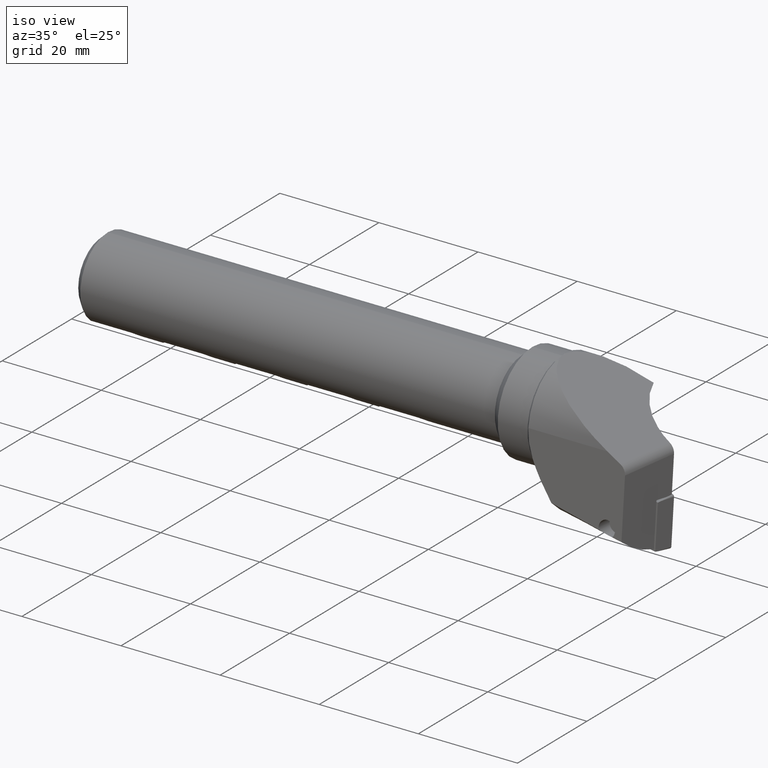
[diagram: clean part render]
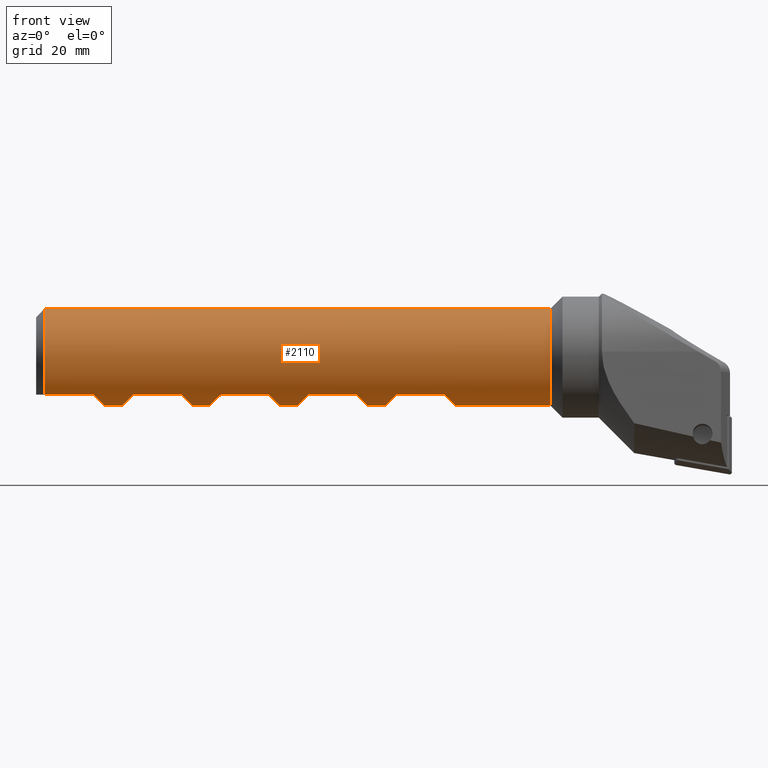
[diagram: tour spotlight — one face highlighted and labeled with its STEP entity id]
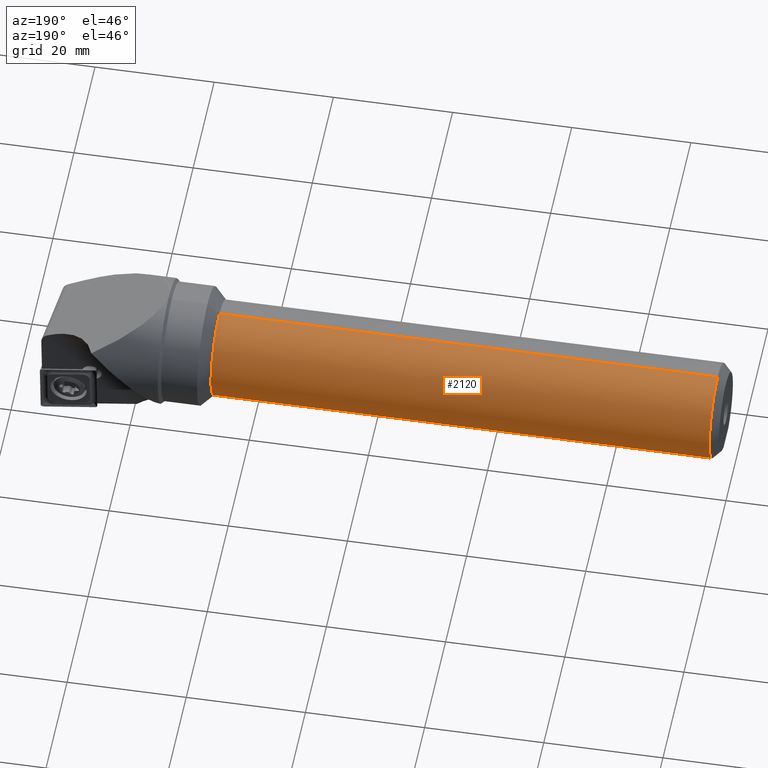
[diagram: tour spotlight — one face highlighted and labeled with its STEP entity id]
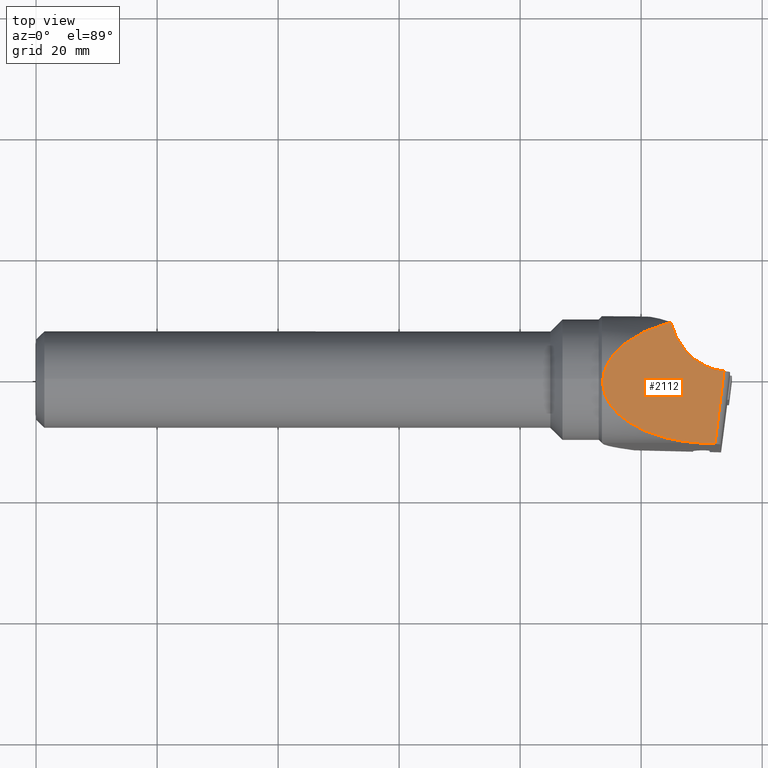
[diagram: tour spotlight — one face highlighted and labeled with its STEP entity id]
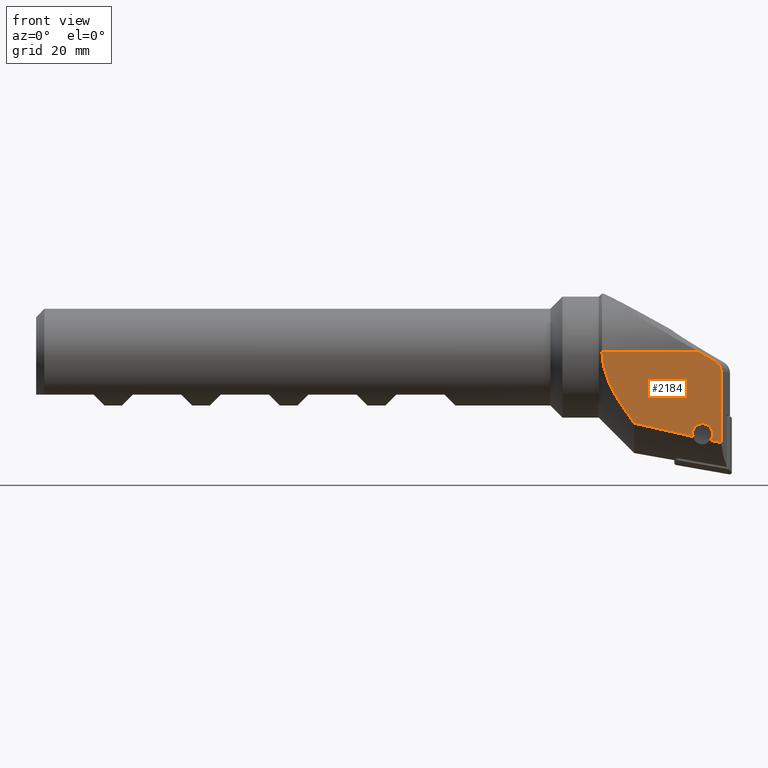
[diagram: tour spotlight — one face highlighted and labeled with its STEP entity id]
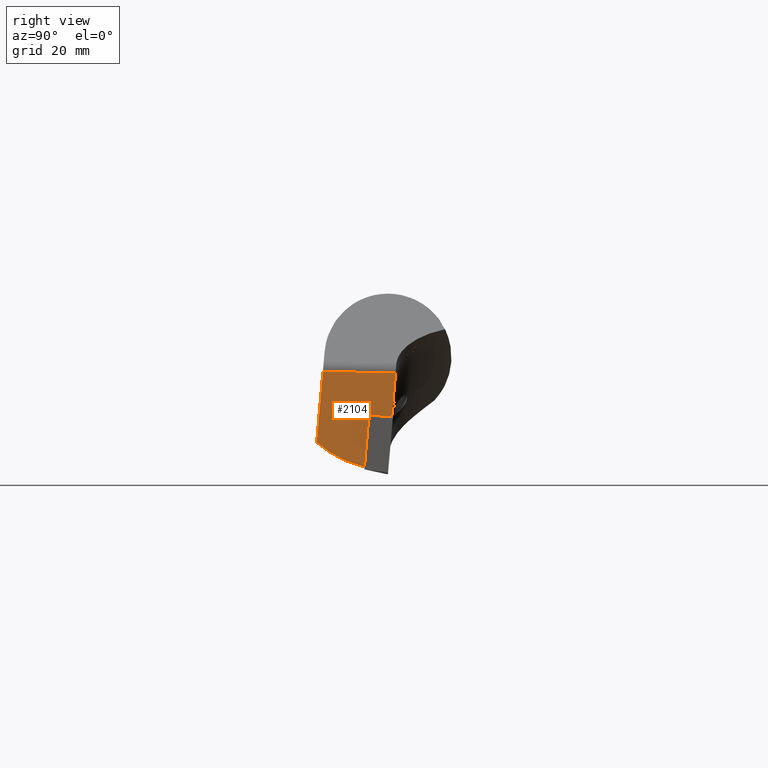
[diagram: tour spotlight — one face highlighted and labeled with its STEP entity id]
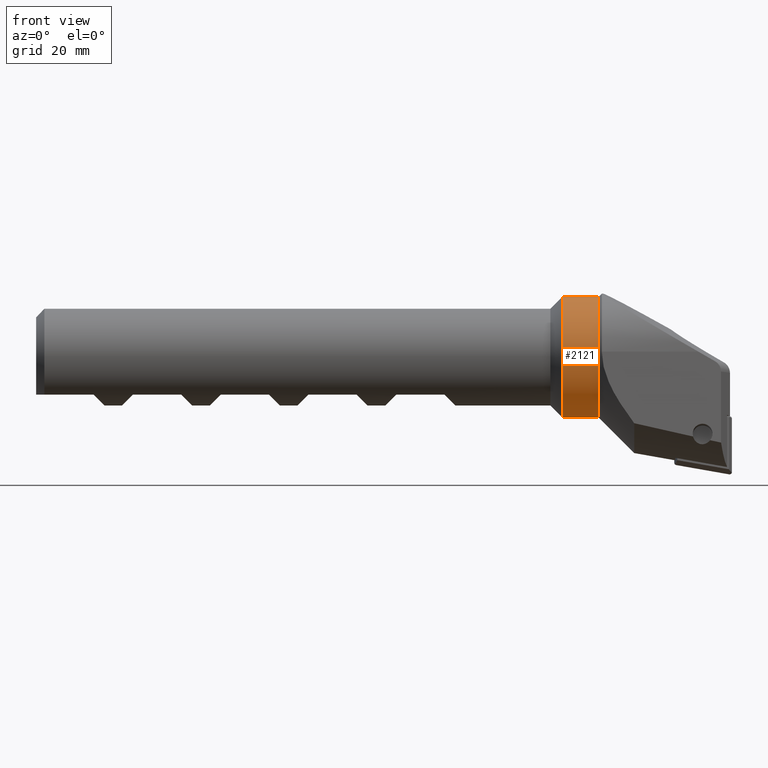
[diagram: tour spotlight — one face highlighted and labeled with its STEP entity id]
A machine part: a face-by-face anatomy tour. The part has 144 B-rep faces; the first image is the clean iso view, then the 6 largest visible faces are spotlighted one at a time (largest first), each with its STEP entity span.

Face 1 — front view, entity #2110. In plain terms, the highlighted cylindrical surface (partial cylindrical patch) has radius 8 mm, axis along (-1, -0, -0).
Definition (entity closure, byte-faithful):
#60 = CARTESIAN_POINT ( 'NONE',  ( 45.00000000000000000, -5.055689863905811900, -6.199999999999997500 ) ) ;
#88 = CARTESIAN_POINT ( 'NONE',  ( 11.30000000000000100, 9.797174393178825700E-016, -8.000000000000000000 ) ) ;
#89 = CARTESIAN_POINT ( 'NONE',  ( 14.19999999999998000, 9.797174393178825700E-016, -8.000000000000000000 ) ) ;
#92 = CARTESIAN_POINT ( 'NONE',  ( 25.80000000000001800, 9.797174393178825700E-016, -8.000000000000000000 ) ) ;
#93 = CARTESIAN_POINT ( 'NONE',  ( 28.69999999999998900, 9.797174393178825700E-016, -8.000000000000000000 ) ) ;
#96 = CARTESIAN_POINT ( 'NONE',  ( 40.30000000000001800, 9.797174393178825700E-016, -8.000000000000000000 ) ) ;
#97 = CARTESIAN_POINT ( 'NONE',  ( 43.19999999999998900, 9.797174393178825700E-016, -8.000000000000000000 ) ) ;
#100 = CARTESIAN_POINT ( 'NONE',  ( 54.80000000000003300, 9.797174393178825700E-016, -8.000000000000000000 ) ) ;
#101 = CARTESIAN_POINT ( 'NONE',  ( 57.69999999999998900, 9.797174393178825700E-016, -8.000000000000000000 ) ) ;
#104 = CARTESIAN_POINT ( 'NONE',  ( 69.30000000000002600, 9.797174393178825700E-016, -8.000000000000000000 ) ) ;
#106 = CARTESIAN_POINT ( 'NONE',  ( 1.374999999999999600, 0.0000000000000000000, 8.000000000000000000 ) ) ;
#109 = CARTESIAN_POINT ( 'NONE',  ( 85.00000000000000000, 0.0000000000000000000, -8.000000000000000000 ) ) ;
#110 = CARTESIAN_POINT ( 'NONE',  ( 85.00000000000000000, 1.102182119232617700E-015, 8.000000000000000000 ) ) ;
#501 = CARTESIAN_POINT ( 'NONE',  ( 38.50000000000000000, -5.055689863905819000, -6.199999999999997500 ) ) ;
#505 = CARTESIAN_POINT ( 'NONE',  ( 24.00000000000000000, -5.055689863905819000, -6.199999999999997500 ) ) ;
#513 = CARTESIAN_POINT ( 'NONE',  ( 9.499999999999998200, -5.055689863905819000, -6.199999999999996600 ) ) ;
#520 = CARTESIAN_POINT ( 'NONE',  ( 59.50000000000000700, -5.055689863905817200, -6.199999999999997500 ) ) ;
#523 = CARTESIAN_POINT ( 'NONE',  ( 67.50000000000000000, -5.055689863905819000, -6.199999999999997500 ) ) ;
#526 = CARTESIAN_POINT ( 'NONE',  ( 53.00000000000000700, -5.055689863905819000, -6.199999999999997500 ) ) ;
#757 = AXIS2_PLACEMENT_3D ( 'NONE', #3999, #4000, #4001 ) ;
#758 = AXIS2_PLACEMENT_3D ( 'NONE', #4004, #4005, #4006 ) ;
#1044 = ORIENTED_EDGE ( 'NONE', *, *, #2199, .F. ) ;
#1045 = ORIENTED_EDGE ( 'NONE', *, *, #5117, .T. ) ;
#1046 = ORIENTED_EDGE ( 'NONE', *, *, #2219, .T. ) ;
#1047 = ORIENTED_EDGE ( 'NONE', *, *, #5119, .F. ) ;
#1048 = ORIENTED_EDGE ( 'NONE', *, *, #5121, .T. ) ;
#1049 = ORIENTED_EDGE ( 'NONE', *, *, #5122, .T. ) ;
#1050 = ORIENTED_EDGE ( 'NONE', *, *, #2215, .F. ) ;
#1051 = ORIENTED_EDGE ( 'NONE', *, *, #5123, .T. ) ;
#1052 = ORIENTED_EDGE ( 'NONE', *, *, #5124, .T. ) ;
#1053 = ORIENTED_EDGE ( 'NONE', *, *, #5126, .T. ) ;
#1054 = ORIENTED_EDGE ( 'NONE', *, *, #2211, .F. ) ;
#1055 = ORIENTED_EDGE ( 'NONE', *, *, #5127, .T. ) ;
#1056 = ORIENTED_EDGE ( 'NONE', *, *, #5129, .T. ) ;
#1057 = ORIENTED_EDGE ( 'NONE', *, *, #5130, .T. ) ;
#1058 = ORIENTED_EDGE ( 'NONE', *, *, #2207, .F. ) ;
#1059 = ORIENTED_EDGE ( 'NONE', *, *, #5131, .T. ) ;
#1060 = ORIENTED_EDGE ( 'NONE', *, *, #5132, .T. ) ;
#1061 = ORIENTED_EDGE ( 'NONE', *, *, #5134, .T. ) ;
#1062 = ORIENTED_EDGE ( 'NONE', *, *, #2203, .F. ) ;
#1063 = ORIENTED_EDGE ( 'NONE', *, *, #5135, .T. ) ;
#1064 = ORIENTED_EDGE ( 'NONE', *, *, #5136, .T. ) ;
#1065 = ORIENTED_EDGE ( 'NONE', *, *, #2238, .T. ) ;
#1354 = VERTEX_POINT ( 'NONE', #110 ) ;
#1355 = VERTEX_POINT ( 'NONE', #109 ) ;
#1358 = VERTEX_POINT ( 'NONE', #106 ) ;
#1360 = VERTEX_POINT ( 'NONE', #104 ) ;
#1363 = VERTEX_POINT ( 'NONE', #101 ) ;
#1364 = VERTEX_POINT ( 'NONE', #100 ) ;
#1367 = VERTEX_POINT ( 'NONE', #97 ) ;
#1368 = VERTEX_POINT ( 'NONE', #96 ) ;
#1371 = VERTEX_POINT ( 'NONE', #93 ) ;
#1372 = VERTEX_POINT ( 'NONE', #92 ) ;
#1375 = VERTEX_POINT ( 'NONE', #89 ) ;
#1376 = VERTEX_POINT ( 'NONE', #88 ) ;
#1404 = VERTEX_POINT ( 'NONE', #60 ) ;
#1406 = VERTEX_POINT ( 'NONE', #2356 ) ;
#1409 = VERTEX_POINT ( 'NONE', #2351 ) ;
#1413 = VERTEX_POINT ( 'NONE', #2303 ) ;
#1417 = VERTEX_POINT ( 'NONE', #520 ) ;
#1418 = VERTEX_POINT ( 'NONE', #513 ) ;
#1420 = VERTEX_POINT ( 'NONE', #505 ) ;
#1421 = VERTEX_POINT ( 'NONE', #501 ) ;
#1423 = VERTEX_POINT ( 'NONE', #526 ) ;
#1425 = VERTEX_POINT ( 'NONE', #523 ) ;
#1586 = FACE_OUTER_BOUND ( 'NONE', #4702, .T. ) ;
#1589 = CYLINDRICAL_SURFACE ( 'NONE', #2021, 8.000000000000000000 ) ;
#1734 = LINE ( 'NONE', #3109, #1764 ) ;
#1739 = LINE ( 'NONE', #3051, #1742 ) ;
#1742 = VECTOR ( 'NONE', #3048, 1000.000000000000000 ) ;
#1745 = LINE ( 'NONE', #3065, #1746 ) ;
#1746 = VECTOR ( 'NONE', #3066, 1000.000000000000000 ) ;
#1749 = LINE ( 'NONE', #3077, #1750 ) ;
#1750 = VECTOR ( 'NONE', #3078, 1000.000000000000000 ) ;
#1753 = LINE ( 'NONE', #3089, #1754 ) ;
#1754 = VECTOR ( 'NONE', #3090, 1000.000000000000000 ) ;
#1757 = LINE ( 'NONE', #3101, #1758 ) ;
#1758 = VECTOR ( 'NONE', #3102, 1000.000000000000000 ) ;
#1764 = VECTOR ( 'NONE', #3103, 1000.000000000000000 ) ;
#2021 = AXIS2_PLACEMENT_3D ( 'NONE', #2737, #2736, #2732 ) ;
#2110 = ADVANCED_FACE ( 'NONE', ( #1586 ), #1589, .T. ) ;
#2199 = EDGE_CURVE ( 'NONE', #1355, #1360, #1739, .T. ) ;
#2203 = EDGE_CURVE ( 'NONE', #1363, #1364, #1745, .T. ) ;
#2207 = EDGE_CURVE ( 'NONE', #1367, #1368, #1749, .T. ) ;
#2211 = EDGE_CURVE ( 'NONE', #1371, #1372, #1753, .T. ) ;
#2215 = EDGE_CURVE ( 'NONE', #1375, #1376, #1757, .T. ) ;
#2219 = EDGE_CURVE ( 'NONE', #1354, #1358, #1734, .T. ) ;
#2238 = EDGE_CURVE ( 'NONE', #1425, #1360, #5081, .T. ) ;
#2303 = CARTESIAN_POINT ( 'NONE',  ( 16.00000000000000000, -5.055689863905819000, -6.199999999999997500 ) ) ;
#2351 = CARTESIAN_POINT ( 'NONE',  ( 1.374999999999999600, -5.055689863905819000, -6.199999999999997500 ) ) ;
#2356 = CARTESIAN_POINT ( 'NONE',  ( 30.50000000000000000, -5.055689863905817200, -6.199999999999997500 ) ) ;
#2732 = DIRECTION ( 'NONE',  ( 0.0000000000000000000, 0.0000000000000000000, 1.000000000000000000 ) ) ;
#2736 = DIRECTION ( 'NONE',  ( -1.000000000000000000, -0.0000000000000000000, -0.0000000000000000000 ) ) ;
#2737 = CARTESIAN_POINT ( 'NONE',  ( -3.175455607189903200, 0.0000000000000000000, 0.0000000000000000000 ) ) ;
#3048 = DIRECTION ( 'NONE',  ( -1.000000000000000000, -0.0000000000000000000, -0.0000000000000000000 ) ) ;
#3051 = CARTESIAN_POINT ( 'NONE',  ( -3.175455607189903200, 9.797174393178825700E-016, -8.000000000000000000 ) ) ;
#3065 = CARTESIAN_POINT ( 'NONE',  ( -3.175455607189903200, 9.797174393178825700E-016, -8.000000000000000000 ) ) ;
#3066 = DIRECTION ( 'NONE',  ( -1.000000000000000000, -0.0000000000000000000, -0.0000000000000000000 ) ) ;
#3077 = CARTESIAN_POINT ( 'NONE',  ( -3.175455607189903200, 9.797174393178825700E-016, -8.000000000000000000 ) ) ;
#3078 = DIRECTION ( 'NONE',  ( -1.000000000000000000, -0.0000000000000000000, -0.0000000000000000000 ) ) ;
#3089 = CARTESIAN_POINT ( 'NONE',  ( -3.175455607189903200, 9.797174393178825700E-016, -8.000000000000000000 ) ) ;
#3090 = DIRECTION ( 'NONE',  ( -1.000000000000000000, -0.0000000000000000000, -0.0000000000000000000 ) ) ;
#3101 = CARTESIAN_POINT ( 'NONE',  ( -3.175455607189903200, 9.797174393178825700E-016, -8.000000000000000000 ) ) ;
#3102 = DIRECTION ( 'NONE',  ( -1.000000000000000000, -0.0000000000000000000, -0.0000000000000000000 ) ) ;
#3103 = DIRECTION ( 'NONE',  ( -1.000000000000000000, -0.0000000000000000000, -0.0000000000000000000 ) ) ;
#3109 = CARTESIAN_POINT ( 'NONE',  ( -3.175455607189903200, 0.0000000000000000000, 8.000000000000000000 ) ) ;
#3168 = CARTESIAN_POINT ( 'NONE',  ( 67.50000000000000000, -5.055689863905819000, -6.199999999999997500 ) ) ;
#3173 = CARTESIAN_POINT ( 'NONE',  ( 68.67589809307645500, -3.613637765511935800, -7.375898093076461500 ) ) ;
#3178 = CARTESIAN_POINT ( 'NONE',  ( 69.30000000000001100, -1.860712385024369400, -7.999999999999998200 ) ) ;
#3179 = CARTESIAN_POINT ( 'NONE',  ( 69.30000000000002600, 9.797174393178825700E-016, -8.000000000000000000 ) ) ;
#3997 = CARTESIAN_POINT ( 'NONE',  ( -3.175455607189902700, -5.055689863905819000, -6.199999999999997500 ) ) ;
#3998 = DIRECTION ( 'NONE',  ( 1.000000000000000000, 0.0000000000000000000, 0.0000000000000000000 ) ) ;
#3999 = CARTESIAN_POINT ( 'NONE',  ( 85.00000000000000000, 0.0000000000000000000, 0.0000000000000000000 ) ) ;
#4000 = DIRECTION ( 'NONE',  ( -1.000000000000000000, -0.0000000000000000000, -0.0000000000000000000 ) ) ;
#4001 = DIRECTION ( 'NONE',  ( 0.0000000000000000000, 0.0000000000000000000, 1.000000000000000000 ) ) ;
#4002 = CARTESIAN_POINT ( 'NONE',  ( 9.499999999999998200, -5.055689863905819000, -6.199999999999996600 ) ) ;
#4003 = CARTESIAN_POINT ( 'NONE',  ( 10.67589809307646000, -3.613637765511935800, -7.375898093076462400 ) ) ;
#4004 = CARTESIAN_POINT ( 'NONE',  ( 1.374999999999999600, 0.0000000000000000000, 0.0000000000000000000 ) ) ;
#4005 = DIRECTION ( 'NONE',  ( -1.000000000000000000, -0.0000000000000000000, -0.0000000000000000000 ) ) ;
#4006 = DIRECTION ( 'NONE',  ( 0.0000000000000000000, 0.0000000000000000000, 1.000000000000000000 ) ) ;
#4007 = CARTESIAN_POINT ( 'NONE',  ( 14.19999999999997800, -1.860712385024368300, -7.999999999999998200 ) ) ;
#4008 = CARTESIAN_POINT ( 'NONE',  ( 14.19999999999998000, 9.797174393178825700E-016, -8.000000000000000000 ) ) ;
#4009 = CARTESIAN_POINT ( 'NONE',  ( 11.29999999999999900, -1.860712385024369400, -7.999999999999998200 ) ) ;
#4010 = CARTESIAN_POINT ( 'NONE',  ( 11.30000000000000100, 9.797174393178825700E-016, -8.000000000000000000 ) ) ;
#4011 = CARTESIAN_POINT ( 'NONE',  ( 25.17589809307647300, -3.613637765511933200, -7.375898093076462400 ) ) ;
#4012 = CARTESIAN_POINT ( 'NONE',  ( 24.00000000000000000, -5.055689863905819000, -6.199999999999997500 ) ) ;
#4013 = CARTESIAN_POINT ( 'NONE',  ( 14.82410190692352200, -3.613637765511933600, -7.375898093076462400 ) ) ;
#4014 = CARTESIAN_POINT ( 'NONE',  ( 16.00000000000000000, -5.055689863905819000, -6.199999999999997500 ) ) ;
#4015 = CARTESIAN_POINT ( 'NONE',  ( -3.175455607189903200, -5.055689863905819000, -6.199999999999997500 ) ) ;
#4016 = DIRECTION ( 'NONE',  ( 1.000000000000000000, 0.0000000000000000000, 0.0000000000000000000 ) ) ;
#4017 = CARTESIAN_POINT ( 'NONE',  ( 28.69999999999997800, -1.860712385024367400, -7.999999999999998200 ) ) ;
#4018 = CARTESIAN_POINT ( 'NONE',  ( 28.69999999999998900, 9.797174393178825700E-016, -8.000000000000000000 ) ) ;
#4019 = CARTESIAN_POINT ( 'NONE',  ( 25.80000000000001500, -1.860712385024368500, -7.999999999999998200 ) ) ;
#4020 = CARTESIAN_POINT ( 'NONE',  ( 25.80000000000001800, 9.797174393178825700E-016, -8.000000000000000000 ) ) ;
#4021 = CARTESIAN_POINT ( 'NONE',  ( 39.67589809307646900, -3.613637765511933200, -7.375898093076462400 ) ) ;
#4022 = CARTESIAN_POINT ( 'NONE',  ( 38.50000000000000000, -5.055689863905819000, -6.199999999999997500 ) ) ;
#4023 = CARTESIAN_POINT ( 'NONE',  ( 29.32410190692352000, -3.613637765511932300, -7.375898093076464200 ) ) ;
#4024 = CARTESIAN_POINT ( 'NONE',  ( 30.50000000000000000, -5.055689863905817200, -6.199999999999997500 ) ) ;
#4025 = CARTESIAN_POINT ( 'NONE',  ( -3.175455607189903200, -5.055689863905819000, -6.199999999999997500 ) ) ;
#4026 = DIRECTION ( 'NONE',  ( 1.000000000000000000, 0.0000000000000000000, 0.0000000000000000000 ) ) ;
#4027 = CARTESIAN_POINT ( 'NONE',  ( 43.19999999999998900, -1.860712385024365000, -7.999999999999998200 ) ) ;
#4028 = CARTESIAN_POINT ( 'NONE',  ( 43.19999999999998900, 9.797174393178825700E-016, -8.000000000000000000 ) ) ;
#4029 = CARTESIAN_POINT ( 'NONE',  ( 40.30000000000001800, -1.860712385024368500, -7.999999999999998200 ) ) ;
#4030 = CARTESIAN_POINT ( 'NONE',  ( 40.30000000000001800, 9.797174393178825700E-016, -8.000000000000000000 ) ) ;
#4031 = CARTESIAN_POINT ( 'NONE',  ( 54.17589809307646900, -3.613637765511933200, -7.375898093076462400 ) ) ;
#4032 = CARTESIAN_POINT ( 'NONE',  ( 53.00000000000000700, -5.055689863905819000, -6.199999999999997500 ) ) ;
#4033 = CARTESIAN_POINT ( 'NONE',  ( 43.82410190692352400, -3.613637765511927800, -7.375898093076464200 ) ) ;
#4034 = CARTESIAN_POINT ( 'NONE',  ( 45.00000000000000000, -5.055689863905811900, -6.199999999999997500 ) ) ;
#4035 = CARTESIAN_POINT ( 'NONE',  ( -3.175455607189903200, -5.055689863905819000, -6.199999999999997500 ) ) ;
#4036 = DIRECTION ( 'NONE',  ( 1.000000000000000000, 0.0000000000000000000, 0.0000000000000000000 ) ) ;
#4037 = CARTESIAN_POINT ( 'NONE',  ( 57.69999999999998200, -1.860712385024367400, -7.999999999999998200 ) ) ;
#4038 = CARTESIAN_POINT ( 'NONE',  ( 57.69999999999998900, 9.797174393178825700E-016, -8.000000000000000000 ) ) ;
#4039 = CARTESIAN_POINT ( 'NONE',  ( 54.80000000000001800, -1.860712385024368500, -7.999999999999998200 ) ) ;
#4040 = CARTESIAN_POINT ( 'NONE',  ( 54.80000000000003300, 9.797174393178825700E-016, -8.000000000000000000 ) ) ;
#4042 = CARTESIAN_POINT ( 'NONE',  ( 58.32410190692352400, -3.613637765511932300, -7.375898093076464200 ) ) ;
#4043 = CARTESIAN_POINT ( 'NONE',  ( 59.50000000000000700, -5.055689863905817200, -6.199999999999997500 ) ) ;
#4044 = CARTESIAN_POINT ( 'NONE',  ( -3.175455607189903200, -5.055689863905819000, -6.199999999999997500 ) ) ;
#4045 = DIRECTION ( 'NONE',  ( 1.000000000000000000, 0.0000000000000000000, 0.0000000000000000000 ) ) ;
#4382 = CIRCLE ( 'NONE', #757, 8.000000000000000000 ) ;
#4384 = CIRCLE ( 'NONE', #758, 8.000000000000000000 ) ;
#4385 = LINE ( 'NONE', #3997, #4386 ) ;
#4386 = VECTOR ( 'NONE', #3998, 1000.000000000000000 ) ;
#4387 = LINE ( 'NONE', #4015, #4388 ) ;
#4388 = VECTOR ( 'NONE', #4016, 1000.000000000000000 ) ;
#4389 = LINE ( 'NONE', #4025, #4390 ) ;
#4390 = VECTOR ( 'NONE', #4026, 1000.000000000000000 ) ;
#4391 = LINE ( 'NONE', #4035, #4392 ) ;
#4392 = VECTOR ( 'NONE', #4036, 1000.000000000000000 ) ;
#4393 = LINE ( 'NONE', #4044, #4395 ) ;
#4395 = VECTOR ( 'NONE', #4045, 1000.000000000000000 ) ;
#4702 = EDGE_LOOP ( 'NONE', ( #1044, #1045, #1046, #1047, #1048, #1049, #1050, #1051, #1052, #1053, #1054, #1055, #1056, #1057, #1058, #1059, #1060, #1061, #1062, #1063, #1064, #1065 ) ) ;
#5081 =( BOUNDED_CURVE ( )  B_SPLINE_CURVE ( 3, ( #3168, #3173, #3178, #3179 ),
 .UNSPECIFIED., .F., .F. ) 
 B_SPLINE_CURVE_WITH_KNOTS ( ( 4, 4 ),
 ( 2.457511421794463100, 3.141592653589793100 ),
 .UNSPECIFIED. ) 
 CURVE ( )  GEOMETRIC_REPRESENTATION_ITEM ( )  RATIONAL_B_SPLINE_CURVE ( ( 1.000000000000000000, 0.9613814560472256900, 0.9613814560472256900, 1.000000000000000000 ) ) 
 REPRESENTATION_ITEM ( '' )  );
#5117 = EDGE_CURVE ( 'NONE', #1355, #1354, #4382, .T. ) ;
#5119 = EDGE_CURVE ( 'NONE', #1409, #1358, #4384, .T. ) ;
#5121 = EDGE_CURVE ( 'NONE', #1409, #1418, #4385, .T. ) ;
#5122 = EDGE_CURVE ( 'NONE', #1418, #1376, #5161, .T. ) ;
#5123 = EDGE_CURVE ( 'NONE', #1375, #1413, #5164, .T. ) ;
#5124 = EDGE_CURVE ( 'NONE', #1413, #1420, #4387, .T. ) ;
#5126 = EDGE_CURVE ( 'NONE', #1420, #1372, #5165, .T. ) ;
#5127 = EDGE_CURVE ( 'NONE', #1371, #1406, #5166, .T. ) ;
#5129 = EDGE_CURVE ( 'NONE', #1406, #1421, #4389, .T. ) ;
#5130 = EDGE_CURVE ( 'NONE', #1421, #1368, #5168, .T. ) ;
#5131 = EDGE_CURVE ( 'NONE', #1367, #1404, #5172, .T. ) ;
#5132 = EDGE_CURVE ( 'NONE', #1404, #1423, #4391, .T. ) ;
#5134 = EDGE_CURVE ( 'NONE', #1423, #1364, #5173, .T. ) ;
#5135 = EDGE_CURVE ( 'NONE', #1363, #1417, #5174, .T. ) ;
#5136 = EDGE_CURVE ( 'NONE', #1417, #1425, #4393, .T. ) ;
#5161 =( BOUNDED_CURVE ( )  B_SPLINE_CURVE ( 3, ( #4002, #4003, #4009, #4010 ),
 .UNSPECIFIED., .F., .F. ) 
 B_SPLINE_CURVE_WITH_KNOTS ( ( 4, 4 ),
 ( 2.457511421794463100, 3.141592653589793100 ),
 .UNSPECIFIED. ) 
 CURVE ( )  GEOMETRIC_REPRESENTATION_ITEM ( )  RATIONAL_B_SPLINE_CURVE ( ( 1.000000000000000000, 0.9613814560472256900, 0.9613814560472256900, 1.000000000000000000 ) ) 
 REPRESENTATION_ITEM ( '' )  );
#5164 =( BOUNDED_CURVE ( )  B_SPLINE_CURVE ( 3, ( #4008, #4007, #4013, #4014 ),
 .UNSPECIFIED., .F., .F. ) 
 B_SPLINE_CURVE_WITH_KNOTS ( ( 4, 4 ),
 ( 0.0000000000000000000, 0.6840812317953298700 ),
 .UNSPECIFIED. ) 
 CURVE ( )  GEOMETRIC_REPRESENTATION_ITEM ( )  RATIONAL_B_SPLINE_CURVE ( ( 1.000000000000000000, 0.9613814560472256900, 0.9613814560472256900, 1.000000000000000000 ) ) 
 REPRESENTATION_ITEM ( '' )  );
#5165 =( BOUNDED_CURVE ( )  B_SPLINE_CURVE ( 3, ( #4012, #4011, #4019, #4020 ),
 .UNSPECIFIED., .F., .F. ) 
 B_SPLINE_CURVE_WITH_KNOTS ( ( 4, 4 ),
 ( 2.457511421794463600, 3.141592653589793100 ),
 .UNSPECIFIED. ) 
 CURVE ( )  GEOMETRIC_REPRESENTATION_ITEM ( )  RATIONAL_B_SPLINE_CURVE ( ( 1.000000000000000000, 0.9613814560472256900, 0.9613814560472256900, 1.000000000000000000 ) ) 
 REPRESENTATION_ITEM ( '' )  );
#5166 =( BOUNDED_CURVE ( )  B_SPLINE_CURVE ( 3, ( #4018, #4017, #4023, #4024 ),
 .UNSPECIFIED., .F., .F. ) 
 B_SPLINE_CURVE_WITH_KNOTS ( ( 4, 4 ),
 ( 0.0000000000000000000, 0.6840812317953295400 ),
 .UNSPECIFIED. ) 
 CURVE ( )  GEOMETRIC_REPRESENTATION_ITEM ( )  RATIONAL_B_SPLINE_CURVE ( ( 1.000000000000000000, 0.9613814560472256900, 0.9613814560472256900, 1.000000000000000000 ) ) 
 REPRESENTATION_ITEM ( '' )  );
#5168 =( BOUNDED_CURVE ( )  B_SPLINE_CURVE ( 3, ( #4022, #4021, #4029, #4030 ),
 .UNSPECIFIED., .F., .F. ) 
 B_SPLINE_CURVE_WITH_KNOTS ( ( 4, 4 ),
 ( 2.457511421794463600, 3.141592653589793100 ),
 .UNSPECIFIED. ) 
 CURVE ( )  GEOMETRIC_REPRESENTATION_ITEM ( )  RATIONAL_B_SPLINE_CURVE ( ( 1.000000000000000000, 0.9613814560472256900, 0.9613814560472256900, 1.000000000000000000 ) ) 
 REPRESENTATION_ITEM ( '' )  );
#5172 =( BOUNDED_CURVE ( )  B_SPLINE_CURVE ( 3, ( #4028, #4027, #4033, #4034 ),
 .UNSPECIFIED., .F., .F. ) 
 B_SPLINE_CURVE_WITH_KNOTS ( ( 4, 4 ),
 ( 0.0000000000000000000, 0.6840812317953286500 ),
 .UNSPECIFIED. ) 
 CURVE ( )  GEOMETRIC_REPRESENTATION_ITEM ( )  RATIONAL_B_SPLINE_CURVE ( ( 1.000000000000000000, 0.9613814560472256900, 0.9613814560472256900, 1.000000000000000000 ) ) 
 REPRESENTATION_ITEM ( '' )  );
#5173 =( BOUNDED_CURVE ( )  B_SPLINE_CURVE ( 3, ( #4032, #4031, #4039, #4040 ),
 .UNSPECIFIED., .F., .F. ) 
 B_SPLINE_CURVE_WITH_KNOTS ( ( 4, 4 ),
 ( 2.457511421794463600, 3.141592653589793100 ),
 .UNSPECIFIED. ) 
 CURVE ( )  GEOMETRIC_REPRESENTATION_ITEM ( )  RATIONAL_B_SPLINE_CURVE ( ( 1.000000000000000000, 0.9613814560472256900, 0.9613814560472256900, 1.000000000000000000 ) ) 
 REPRESENTATION_ITEM ( '' )  );
#5174 =( BOUNDED_CURVE ( )  B_SPLINE_CURVE ( 3, ( #4038, #4037, #4042, #4043 ),
 .UNSPECIFIED., .F., .F. ) 
 B_SPLINE_CURVE_WITH_KNOTS ( ( 4, 4 ),
 ( 0.0000000000000000000, 0.6840812317953295400 ),
 .UNSPECIFIED. ) 
 CURVE ( )  GEOMETRIC_REPRESENTATION_ITEM ( )  RATIONAL_B_SPLINE_CURVE ( ( 1.000000000000000000, 0.9613814560472256900, 0.9613814560472256900, 1.000000000000000000 ) ) 
 REPRESENTATION_ITEM ( '' )  );

Face 2 — auxiliary view, entity #2120. In plain terms, the highlighted cylindrical surface (partial cylindrical patch) has radius 8 mm, axis along (-1, -0, -0).
Definition (entity closure, byte-faithful):
#86 = CARTESIAN_POINT ( 'NONE',  ( 1.375000000000003600, 5.055689863905846500, -6.199999999999997500 ) ) ;
#87 = CARTESIAN_POINT ( 'NONE',  ( 9.499999999999998200, 5.055689863905820800, -6.199999999999996600 ) ) ;
#88 = CARTESIAN_POINT ( 'NONE',  ( 11.30000000000000100, 9.797174393178825700E-016, -8.000000000000000000 ) ) ;
#89 = CARTESIAN_POINT ( 'NONE',  ( 14.19999999999998000, 9.797174393178825700E-016, -8.000000000000000000 ) ) ;
#90 = CARTESIAN_POINT ( 'NONE',  ( 16.00000000000000000, 5.055689863905820800, -6.199999999999997500 ) ) ;
#91 = CARTESIAN_POINT ( 'NONE',  ( 24.00000000000000000, 5.055689863905820800, -6.199999999999997500 ) ) ;
#92 = CARTESIAN_POINT ( 'NONE',  ( 25.80000000000001800, 9.797174393178825700E-016, -8.000000000000000000 ) ) ;
#93 = CARTESIAN_POINT ( 'NONE',  ( 28.69999999999998900, 9.797174393178825700E-016, -8.000000000000000000 ) ) ;
#94 = CARTESIAN_POINT ( 'NONE',  ( 30.50000000000000000, 5.055689863905817200, -6.199999999999997500 ) ) ;
#95 = CARTESIAN_POINT ( 'NONE',  ( 38.50000000000000000, 5.055689863905820800, -6.199999999999997500 ) ) ;
#96 = CARTESIAN_POINT ( 'NONE',  ( 40.30000000000001800, 9.797174393178825700E-016, -8.000000000000000000 ) ) ;
#97 = CARTESIAN_POINT ( 'NONE',  ( 43.19999999999998900, 9.797174393178825700E-016, -8.000000000000000000 ) ) ;
#98 = CARTESIAN_POINT ( 'NONE',  ( 45.00000000000000000, 5.055689863905813700, -6.199999999999997500 ) ) ;
#99 = CARTESIAN_POINT ( 'NONE',  ( 53.00000000000000700, 5.055689863905820800, -6.199999999999997500 ) ) ;
#100 = CARTESIAN_POINT ( 'NONE',  ( 54.80000000000003300, 9.797174393178825700E-016, -8.000000000000000000 ) ) ;
#101 = CARTESIAN_POINT ( 'NONE',  ( 57.69999999999998900, 9.797174393178825700E-016, -8.000000000000000000 ) ) ;
#102 = CARTESIAN_POINT ( 'NONE',  ( 59.50000000000000700, 5.055689863905817200, -6.199999999999997500 ) ) ;
#103 = CARTESIAN_POINT ( 'NONE',  ( 67.50000000000000000, 5.055689863905820800, -6.199999999999997500 ) ) ;
#104 = CARTESIAN_POINT ( 'NONE',  ( 69.30000000000002600, 9.797174393178825700E-016, -8.000000000000000000 ) ) ;
#106 = CARTESIAN_POINT ( 'NONE',  ( 1.374999999999999600, 0.0000000000000000000, 8.000000000000000000 ) ) ;
#109 = CARTESIAN_POINT ( 'NONE',  ( 85.00000000000000000, 0.0000000000000000000, -8.000000000000000000 ) ) ;
#110 = CARTESIAN_POINT ( 'NONE',  ( 85.00000000000000000, 1.102182119232617700E-015, 8.000000000000000000 ) ) ;
#674 = AXIS2_PLACEMENT_3D ( 'NONE', #3052, #3053, #3054 ) ;
#675 = AXIS2_PLACEMENT_3D ( 'NONE', #3110, #3111, #3112 ) ;
#916 = ORIENTED_EDGE ( 'NONE', *, *, #2198, .T. ) ;
#917 = ORIENTED_EDGE ( 'NONE', *, *, #2199, .T. ) ;
#918 = ORIENTED_EDGE ( 'NONE', *, *, #2200, .T. ) ;
#919 = ORIENTED_EDGE ( 'NONE', *, *, #2201, .T. ) ;
#920 = ORIENTED_EDGE ( 'NONE', *, *, #2202, .T. ) ;
#921 = ORIENTED_EDGE ( 'NONE', *, *, #2203, .T. ) ;
#922 = ORIENTED_EDGE ( 'NONE', *, *, #2204, .T. ) ;
#923 = ORIENTED_EDGE ( 'NONE', *, *, #2205, .T. ) ;
#924 = ORIENTED_EDGE ( 'NONE', *, *, #2206, .T. ) ;
#925 = ORIENTED_EDGE ( 'NONE', *, *, #2207, .T. ) ;
#926 = ORIENTED_EDGE ( 'NONE', *, *, #2208, .T. ) ;
#927 = ORIENTED_EDGE ( 'NONE', *, *, #2209, .T. ) ;
#928 = ORIENTED_EDGE ( 'NONE', *, *, #2210, .T. ) ;
#929 = ORIENTED_EDGE ( 'NONE', *, *, #2211, .T. ) ;
#930 = ORIENTED_EDGE ( 'NONE', *, *, #2212, .T. ) ;
#931 = ORIENTED_EDGE ( 'NONE', *, *, #2213, .T. ) ;
#932 = ORIENTED_EDGE ( 'NONE', *, *, #2214, .T. ) ;
#933 = ORIENTED_EDGE ( 'NONE', *, *, #2215, .T. ) ;
#934 = ORIENTED_EDGE ( 'NONE', *, *, #2216, .T. ) ;
#935 = ORIENTED_EDGE ( 'NONE', *, *, #2217, .T. ) ;
#936 = ORIENTED_EDGE ( 'NONE', *, *, #2218, .F. ) ;
#937 = ORIENTED_EDGE ( 'NONE', *, *, #2219, .F. ) ;
#1354 = VERTEX_POINT ( 'NONE', #110 ) ;
#1355 = VERTEX_POINT ( 'NONE', #109 ) ;
#1358 = VERTEX_POINT ( 'NONE', #106 ) ;
#1360 = VERTEX_POINT ( 'NONE', #104 ) ;
#1361 = VERTEX_POINT ( 'NONE', #103 ) ;
#1362 = VERTEX_POINT ( 'NONE', #102 ) ;
#1363 = VERTEX_POINT ( 'NONE', #101 ) ;
#1364 = VERTEX_POINT ( 'NONE', #100 ) ;
#1365 = VERTEX_POINT ( 'NONE', #99 ) ;
#1366 = VERTEX_POINT ( 'NONE', #98 ) ;
#1367 = VERTEX_POINT ( 'NONE', #97 ) ;
#1368 = VERTEX_POINT ( 'NONE', #96 ) ;
#1369 = VERTEX_POINT ( 'NONE', #95 ) ;
#1370 = VERTEX_POINT ( 'NONE', #94 ) ;
#1371 = VERTEX_POINT ( 'NONE', #93 ) ;
#1372 = VERTEX_POINT ( 'NONE', #92 ) ;
#1373 = VERTEX_POINT ( 'NONE', #91 ) ;
#1374 = VERTEX_POINT ( 'NONE', #90 ) ;
#1375 = VERTEX_POINT ( 'NONE', #89 ) ;
#1376 = VERTEX_POINT ( 'NONE', #88 ) ;
#1377 = VERTEX_POINT ( 'NONE', #87 ) ;
#1378 = VERTEX_POINT ( 'NONE', #86 ) ;
#1592 = CYLINDRICAL_SURFACE ( 'NONE', #2032, 8.000000000000000000 ) ;
#1595 = FACE_OUTER_BOUND ( 'NONE', #4735, .T. ) ;
#1734 = LINE ( 'NONE', #3109, #1764 ) ;
#1736 = CIRCLE ( 'NONE', #674, 8.000000000000000000 ) ;
#1739 = LINE ( 'NONE', #3051, #1742 ) ;
#1742 = VECTOR ( 'NONE', #3048, 1000.000000000000000 ) ;
#1743 = LINE ( 'NONE', #3059, #1744 ) ;
#1744 = VECTOR ( 'NONE', #3060, 1000.000000000000000 ) ;
#1745 = LINE ( 'NONE', #3065, #1746 ) ;
#1746 = VECTOR ( 'NONE', #3066, 1000.000000000000000 ) ;
#1747 = LINE ( 'NONE', #3071, #1748 ) ;
#1748 = VECTOR ( 'NONE', #3072, 1000.000000000000000 ) ;
#1749 = LINE ( 'NONE', #3077, #1750 ) ;
#1750 = VECTOR ( 'NONE', #3078, 1000.000000000000000 ) ;
#1751 = LINE ( 'NONE', #3083, #1752 ) ;
#1752 = VECTOR ( 'NONE', #3084, 1000.000000000000000 ) ;
#1753 = LINE ( 'NONE', #3089, #1754 ) ;
#1754 = VECTOR ( 'NONE', #3090, 1000.000000000000000 ) ;
#1755 = LINE ( 'NONE', #3095, #1756 ) ;
#1756 = VECTOR ( 'NONE', #3096, 1000.000000000000000 ) ;
#1757 = LINE ( 'NONE', #3101, #1758 ) ;
#1758 = VECTOR ( 'NONE', #3102, 1000.000000000000000 ) ;
#1759 = LINE ( 'NONE', #3106, #1761 ) ;
#1760 = CIRCLE ( 'NONE', #675, 8.000000000000000000 ) ;
#1761 = VECTOR ( 'NONE', #3107, 1000.000000000000000 ) ;
#1764 = VECTOR ( 'NONE', #3103, 1000.000000000000000 ) ;
#2032 = AXIS2_PLACEMENT_3D ( 'NONE', #2772, #2770, #2768 ) ;
#2120 = ADVANCED_FACE ( 'NONE', ( #1595 ), #1592, .T. ) ;
#2198 = EDGE_CURVE ( 'NONE', #1354, #1355, #1736, .T. ) ;
#2199 = EDGE_CURVE ( 'NONE', #1355, #1360, #1739, .T. ) ;
#2200 = EDGE_CURVE ( 'NONE', #1360, #1361, #5021, .T. ) ;
#2201 = EDGE_CURVE ( 'NONE', #1361, #1362, #1743, .T. ) ;
#2202 = EDGE_CURVE ( 'NONE', #1362, #1363, #5022, .T. ) ;
#2203 = EDGE_CURVE ( 'NONE', #1363, #1364, #1745, .T. ) ;
#2204 = EDGE_CURVE ( 'NONE', #1364, #1365, #5019, .T. ) ;
#2205 = EDGE_CURVE ( 'NONE', #1365, #1366, #1747, .T. ) ;
#2206 = EDGE_CURVE ( 'NONE', #1366, #1367, #5018, .T. ) ;
#2207 = EDGE_CURVE ( 'NONE', #1367, #1368, #1749, .T. ) ;
#2208 = EDGE_CURVE ( 'NONE', #1368, #1369, #5178, .T. ) ;
#2209 = EDGE_CURVE ( 'NONE', #1369, #1370, #1751, .T. ) ;
#2210 = EDGE_CURVE ( 'NONE', #1370, #1371, #5111, .T. ) ;
#2211 = EDGE_CURVE ( 'NONE', #1371, #1372, #1753, .T. ) ;
#2212 = EDGE_CURVE ( 'NONE', #1372, #1373, #5092, .T. ) ;
#2213 = EDGE_CURVE ( 'NONE', #1373, #1374, #1755, .T. ) ;
#2214 = EDGE_CURVE ( 'NONE', #1374, #1375, #5020, .T. ) ;
#2215 = EDGE_CURVE ( 'NONE', #1375, #1376, #1757, .T. ) ;
#2216 = EDGE_CURVE ( 'NONE', #1376, #1377, #5034, .T. ) ;
#2217 = EDGE_CURVE ( 'NONE', #1377, #1378, #1759, .T. ) ;
#2218 = EDGE_CURVE ( 'NONE', #1358, #1378, #1760, .T. ) ;
#2219 = EDGE_CURVE ( 'NONE', #1354, #1358, #1734, .T. ) ;
#2768 = DIRECTION ( 'NONE',  ( 0.0000000000000000000, 0.0000000000000000000, 1.000000000000000000 ) ) ;
#2770 = DIRECTION ( 'NONE',  ( -1.000000000000000000, -0.0000000000000000000, -0.0000000000000000000 ) ) ;
#2772 = CARTESIAN_POINT ( 'NONE',  ( -3.175455607189903200, 0.0000000000000000000, 0.0000000000000000000 ) ) ;
#3048 = DIRECTION ( 'NONE',  ( -1.000000000000000000, -0.0000000000000000000, -0.0000000000000000000 ) ) ;
#3049 = CARTESIAN_POINT ( 'NONE',  ( 69.30000000000002600, 9.797174393178825700E-016, -8.000000000000000000 ) ) ;
#3050 = CARTESIAN_POINT ( 'NONE',  ( 69.30000000000001100, 1.860712385024367400, -7.999999999999998200 ) ) ;
#3051 = CARTESIAN_POINT ( 'NONE',  ( -3.175455607189903200, 9.797174393178825700E-016, -8.000000000000000000 ) ) ;
#3052 = CARTESIAN_POINT ( 'NONE',  ( 85.00000000000000000, 0.0000000000000000000, 0.0000000000000000000 ) ) ;
#3053 = DIRECTION ( 'NONE',  ( -1.000000000000000000, -0.0000000000000000000, -0.0000000000000000000 ) ) ;
#3054 = DIRECTION ( 'NONE',  ( 0.0000000000000000000, 0.0000000000000000000, 1.000000000000000000 ) ) ;
#3055 = CARTESIAN_POINT ( 'NONE',  ( 58.32410190692352400, 3.613637765511934100, -7.375898093076463300 ) ) ;
#3056 = CARTESIAN_POINT ( 'NONE',  ( 59.50000000000000700, 5.055689863905817200, -6.199999999999997500 ) ) ;
#3057 = CARTESIAN_POINT ( 'NONE',  ( 68.67589809307645500, 3.613637765511933200, -7.375898093076462400 ) ) ;
#3058 = CARTESIAN_POINT ( 'NONE',  ( 67.50000000000000000, 5.055689863905820800, -6.199999999999997500 ) ) ;
#3059 = CARTESIAN_POINT ( 'NONE',  ( -3.175455607189903200, 5.055689863905819000, -6.199999999999997500 ) ) ;
#3060 = DIRECTION ( 'NONE',  ( -1.000000000000000000, -0.0000000000000000000, -0.0000000000000000000 ) ) ;
#3061 = CARTESIAN_POINT ( 'NONE',  ( 54.80000000000001800, 1.860712385024366100, -7.999999999999998200 ) ) ;
#3062 = CARTESIAN_POINT ( 'NONE',  ( 54.80000000000003300, 9.797174393178825700E-016, -8.000000000000000000 ) ) ;
#3063 = CARTESIAN_POINT ( 'NONE',  ( 57.69999999999998200, 1.860712385024367400, -7.999999999999998200 ) ) ;
#3064 = CARTESIAN_POINT ( 'NONE',  ( 57.69999999999998900, 9.797174393178825700E-016, -8.000000000000000000 ) ) ;
#3065 = CARTESIAN_POINT ( 'NONE',  ( -3.175455607189903200, 9.797174393178825700E-016, -8.000000000000000000 ) ) ;
#3066 = DIRECTION ( 'NONE',  ( -1.000000000000000000, -0.0000000000000000000, -0.0000000000000000000 ) ) ;
#3067 = CARTESIAN_POINT ( 'NONE',  ( 43.82410190692352400, 3.613637765511929200, -7.375898093076464200 ) ) ;
#3068 = CARTESIAN_POINT ( 'NONE',  ( 45.00000000000000000, 5.055689863905813700, -6.199999999999997500 ) ) ;
#3069 = CARTESIAN_POINT ( 'NONE',  ( 54.17589809307646900, 3.613637765511931400, -7.375898093076464200 ) ) ;
#3070 = CARTESIAN_POINT ( 'NONE',  ( 53.00000000000000700, 5.055689863905820800, -6.199999999999997500 ) ) ;
#3071 = CARTESIAN_POINT ( 'NONE',  ( -3.175455607189903200, 5.055689863905819000, -6.199999999999997500 ) ) ;
#3072 = DIRECTION ( 'NONE',  ( -1.000000000000000000, -0.0000000000000000000, -0.0000000000000000000 ) ) ;
#3073 = CARTESIAN_POINT ( 'NONE',  ( 40.30000000000001800, 1.860712385024366100, -7.999999999999998200 ) ) ;
#3074 = CARTESIAN_POINT ( 'NONE',  ( 40.30000000000001800, 9.797174393178825700E-016, -8.000000000000000000 ) ) ;
#3075 = CARTESIAN_POINT ( 'NONE',  ( 43.19999999999998900, 1.860712385024365000, -7.999999999999998200 ) ) ;
#3076 = CARTESIAN_POINT ( 'NONE',  ( 43.19999999999998900, 9.797174393178825700E-016, -8.000000000000000000 ) ) ;
#3077 = CARTESIAN_POINT ( 'NONE',  ( -3.175455607189903200, 9.797174393178825700E-016, -8.000000000000000000 ) ) ;
#3078 = DIRECTION ( 'NONE',  ( -1.000000000000000000, -0.0000000000000000000, -0.0000000000000000000 ) ) ;
#3079 = CARTESIAN_POINT ( 'NONE',  ( 29.32410190692352000, 3.613637765511934100, -7.375898093076463300 ) ) ;
#3080 = CARTESIAN_POINT ( 'NONE',  ( 30.50000000000000000, 5.055689863905817200, -6.199999999999997500 ) ) ;
#3081 = CARTESIAN_POINT ( 'NONE',  ( 39.67589809307646900, 3.613637765511931400, -7.375898093076464200 ) ) ;
#3082 = CARTESIAN_POINT ( 'NONE',  ( 38.50000000000000000, 5.055689863905820800, -6.199999999999997500 ) ) ;
#3083 = CARTESIAN_POINT ( 'NONE',  ( -3.175455607189903200, 5.055689863905819000, -6.199999999999997500 ) ) ;
#3084 = DIRECTION ( 'NONE',  ( -1.000000000000000000, -0.0000000000000000000, -0.0000000000000000000 ) ) ;
#3085 = CARTESIAN_POINT ( 'NONE',  ( 25.80000000000001500, 1.860712385024366100, -7.999999999999998200 ) ) ;
#3086 = CARTESIAN_POINT ( 'NONE',  ( 25.80000000000001800, 9.797174393178825700E-016, -8.000000000000000000 ) ) ;
#3087 = CARTESIAN_POINT ( 'NONE',  ( 28.69999999999997800, 1.860712385024367400, -7.999999999999998200 ) ) ;
#3088 = CARTESIAN_POINT ( 'NONE',  ( 28.69999999999998900, 9.797174393178825700E-016, -8.000000000000000000 ) ) ;
#3089 = CARTESIAN_POINT ( 'NONE',  ( -3.175455607189903200, 9.797174393178825700E-016, -8.000000000000000000 ) ) ;
#3090 = DIRECTION ( 'NONE',  ( -1.000000000000000000, -0.0000000000000000000, -0.0000000000000000000 ) ) ;
#3091 = CARTESIAN_POINT ( 'NONE',  ( 14.82410190692352500, 3.613637765511939800, -7.375898093076461500 ) ) ;
#3092 = CARTESIAN_POINT ( 'NONE',  ( 16.00000000000000000, 5.055689863905820800, -6.199999999999997500 ) ) ;
#3093 = CARTESIAN_POINT ( 'NONE',  ( 25.17589809307647300, 3.613637765511931400, -7.375898093076464200 ) ) ;
#3094 = CARTESIAN_POINT ( 'NONE',  ( 24.00000000000000000, 5.055689863905820800, -6.199999999999997500 ) ) ;
#3095 = CARTESIAN_POINT ( 'NONE',  ( -3.175455607189903200, 5.055689863905819000, -6.199999999999997500 ) ) ;
#3096 = DIRECTION ( 'NONE',  ( -1.000000000000000000, -0.0000000000000000000, -0.0000000000000000000 ) ) ;
#3097 = CARTESIAN_POINT ( 'NONE',  ( 11.29999999999999900, 1.860712385024367400, -7.999999999999998200 ) ) ;
#3098 = CARTESIAN_POINT ( 'NONE',  ( 11.30000000000000100, 9.797174393178825700E-016, -8.000000000000000000 ) ) ;
#3099 = CARTESIAN_POINT ( 'NONE',  ( 14.19999999999998000, 1.860712385024369900, -8.000000000000000000 ) ) ;
#3100 = CARTESIAN_POINT ( 'NONE',  ( 14.19999999999998000, 9.797174393178825700E-016, -8.000000000000000000 ) ) ;
#3101 = CARTESIAN_POINT ( 'NONE',  ( -3.175455607189903200, 9.797174393178825700E-016, -8.000000000000000000 ) ) ;
#3102 = DIRECTION ( 'NONE',  ( -1.000000000000000000, -0.0000000000000000000, -0.0000000000000000000 ) ) ;
#3103 = DIRECTION ( 'NONE',  ( -1.000000000000000000, -0.0000000000000000000, -0.0000000000000000000 ) ) ;
#3104 = CARTESIAN_POINT ( 'NONE',  ( 10.67589809307646000, 3.613637765511933200, -7.375898093076462400 ) ) ;
#3105 = CARTESIAN_POINT ( 'NONE',  ( 9.499999999999998200, 5.055689863905820800, -6.199999999999996600 ) ) ;
#3106 = CARTESIAN_POINT ( 'NONE',  ( -3.175455607189902700, 5.055689863905819000, -6.199999999999997500 ) ) ;
#3107 = DIRECTION ( 'NONE',  ( -1.000000000000000000, -0.0000000000000000000, -0.0000000000000000000 ) ) ;
#3109 = CARTESIAN_POINT ( 'NONE',  ( -3.175455607189903200, 0.0000000000000000000, 8.000000000000000000 ) ) ;
#3110 = CARTESIAN_POINT ( 'NONE',  ( 1.374999999999999600, 0.0000000000000000000, 0.0000000000000000000 ) ) ;
#3111 = DIRECTION ( 'NONE',  ( -1.000000000000000000, -0.0000000000000000000, -0.0000000000000000000 ) ) ;
#3112 = DIRECTION ( 'NONE',  ( 0.0000000000000000000, 0.0000000000000000000, 1.000000000000000000 ) ) ;
#4735 = EDGE_LOOP ( 'NONE', ( #916, #917, #918, #919, #920, #921, #922, #923, #924, #925, #926, #927, #928, #929, #930, #931, #932, #933, #934, #935, #936, #937 ) ) ;
#5018 =( BOUNDED_CURVE ( )  B_SPLINE_CURVE ( 3, ( #3068, #3067, #3075, #3076 ),
 .UNSPECIFIED., .F., .T. ) 
 B_SPLINE_CURVE_WITH_KNOTS ( ( 4, 4 ),
 ( 5.599104075384257600, 6.283185307179586200 ),
 .UNSPECIFIED. ) 
 CURVE ( )  GEOMETRIC_REPRESENTATION_ITEM ( )  RATIONAL_B_SPLINE_CURVE ( ( 1.000000000000000000, 0.9613814560472256900, 0.9613814560472256900, 1.000000000000000000 ) ) 
 REPRESENTATION_ITEM ( '' )  );
#5019 =( BOUNDED_CURVE ( )  B_SPLINE_CURVE ( 3, ( #3062, #3061, #3069, #3070 ),
 .UNSPECIFIED., .F., .T. ) 
 B_SPLINE_CURVE_WITH_KNOTS ( ( 4, 4 ),
 ( 3.141592653589793100, 3.825673885385122700 ),
 .UNSPECIFIED. ) 
 CURVE ( )  GEOMETRIC_REPRESENTATION_ITEM ( )  RATIONAL_B_SPLINE_CURVE ( ( 1.000000000000000000, 0.9613814560472256900, 0.9613814560472256900, 1.000000000000000000 ) ) 
 REPRESENTATION_ITEM ( '' )  );
#5020 =( BOUNDED_CURVE ( )  B_SPLINE_CURVE ( 3, ( #3092, #3091, #3099, #3100 ),
 .UNSPECIFIED., .F., .T. ) 
 B_SPLINE_CURVE_WITH_KNOTS ( ( 4, 4 ),
 ( 5.599104075384255800, 6.283185307179586200 ),
 .UNSPECIFIED. ) 
 CURVE ( )  GEOMETRIC_REPRESENTATION_ITEM ( )  RATIONAL_B_SPLINE_CURVE ( ( 1.000000000000000000, 0.9613814560472255800, 0.9613814560472255800, 1.000000000000000000 ) ) 
 REPRESENTATION_ITEM ( '' )  );
#5021 =( BOUNDED_CURVE ( )  B_SPLINE_CURVE ( 3, ( #3049, #3050, #3057, #3058 ),
 .UNSPECIFIED., .F., .T. ) 
 B_SPLINE_CURVE_WITH_KNOTS ( ( 4, 4 ),
 ( 3.141592653589793100, 3.825673885385123100 ),
 .UNSPECIFIED. ) 
 CURVE ( )  GEOMETRIC_REPRESENTATION_ITEM ( )  RATIONAL_B_SPLINE_CURVE ( ( 1.000000000000000000, 0.9613814560472256900, 0.9613814560472256900, 1.000000000000000000 ) ) 
 REPRESENTATION_ITEM ( '' )  );
#5022 =( BOUNDED_CURVE ( )  B_SPLINE_CURVE ( 3, ( #3056, #3055, #3063, #3064 ),
 .UNSPECIFIED., .F., .T. ) 
 B_SPLINE_CURVE_WITH_KNOTS ( ( 4, 4 ),
 ( 5.599104075384256700, 6.283185307179586200 ),
 .UNSPECIFIED. ) 
 CURVE ( )  GEOMETRIC_REPRESENTATION_ITEM ( )  RATIONAL_B_SPLINE_CURVE ( ( 1.000000000000000000, 0.9613814560472256900, 0.9613814560472256900, 1.000000000000000000 ) ) 
 REPRESENTATION_ITEM ( '' )  );
#5034 =( BOUNDED_CURVE ( )  B_SPLINE_CURVE ( 3, ( #3098, #3097, #3104, #3105 ),
 .UNSPECIFIED., .F., .F. ) 
 B_SPLINE_CURVE_WITH_KNOTS ( ( 4, 4 ),
 ( 3.141592653589793100, 3.825673885385123100 ),
 .UNSPECIFIED. ) 
 CURVE ( )  GEOMETRIC_REPRESENTATION_ITEM ( )  RATIONAL_B_SPLINE_CURVE ( ( 1.000000000000000000, 0.9613814560472256900, 0.9613814560472256900, 1.000000000000000000 ) ) 
 REPRESENTATION_ITEM ( '' )  );
#5092 =( BOUNDED_CURVE ( )  B_SPLINE_CURVE ( 3, ( #3086, #3085, #3093, #3094 ),
 .UNSPECIFIED., .F., .T. ) 
 B_SPLINE_CURVE_WITH_KNOTS ( ( 4, 4 ),
 ( 3.141592653589793100, 3.825673885385122700 ),
 .UNSPECIFIED. ) 
 CURVE ( )  GEOMETRIC_REPRESENTATION_ITEM ( )  RATIONAL_B_SPLINE_CURVE ( ( 1.000000000000000000, 0.9613814560472256900, 0.9613814560472256900, 1.000000000000000000 ) ) 
 REPRESENTATION_ITEM ( '' )  );
#5111 =( BOUNDED_CURVE ( )  B_SPLINE_CURVE ( 3, ( #3080, #3079, #3087, #3088 ),
 .UNSPECIFIED., .F., .T. ) 
 B_SPLINE_CURVE_WITH_KNOTS ( ( 4, 4 ),
 ( 5.599104075384256700, 6.283185307179586200 ),
 .UNSPECIFIED. ) 
 CURVE ( )  GEOMETRIC_REPRESENTATION_ITEM ( )  RATIONAL_B_SPLINE_CURVE ( ( 1.000000000000000000, 0.9613814560472256900, 0.9613814560472256900, 1.000000000000000000 ) ) 
 REPRESENTATION_ITEM ( '' )  );
#5178 =( BOUNDED_CURVE ( )  B_SPLINE_CURVE ( 3, ( #3074, #3073, #3081, #3082 ),
 .UNSPECIFIED., .F., .T. ) 
 B_SPLINE_CURVE_WITH_KNOTS ( ( 4, 4 ),
 ( 3.141592653589793100, 3.825673885385122700 ),
 .UNSPECIFIED. ) 
 CURVE ( )  GEOMETRIC_REPRESENTATION_ITEM ( )  RATIONAL_B_SPLINE_CURVE ( ( 1.000000000000000000, 0.9613814560472256900, 0.9613814560472256900, 1.000000000000000000 ) ) 
 REPRESENTATION_ITEM ( '' )  );

Face 3 — top view, entity #2112. In plain terms, the highlighted planar face has unit normal (-0.4963, 0.0465, -0.8669).
Definition (entity closure, byte-faithful):
#61 = CARTESIAN_POINT ( 'NONE',  ( 104.8607599060487100, 9.433491665901369700, 4.610773795077020200 ) ) ;
#131 = CARTESIAN_POINT ( 'NONE',  ( 93.68939464408073500, 0.0000000000000000000, 10.50000000000000700 ) ) ;
#132 = CARTESIAN_POINT ( 'NONE',  ( 109.4529760657112500, -10.46004432996333700, 0.9151352988504110100 ) ) ;
#378 = CARTESIAN_POINT ( 'NONE',  ( 109.4529760657112500, -10.46004432996333700, 0.9151352988504110100 ) ) ;
#379 = CARTESIAN_POINT ( 'NONE',  ( 93.68939464408073500, 0.0000000000000000000, 10.50000000000000700 ) ) ;
#384 = CARTESIAN_POINT ( 'NONE',  ( 99.52258813758251700, -9.960353251695691400, 6.626630458672782000 ) ) ;
#387 = CARTESIAN_POINT ( 'NONE',  ( 93.15231812913344800, -5.733312143462510100, 10.50000000000000700 ) ) ;
#509 = CARTESIAN_POINT ( 'NONE',  ( 112.2108767290615800, -10.59882021326201200, -0.6710803056153562500 ) ) ;
#568 = EDGE_CURVE ( 'NONE', #1333, #1332, #5209, .T. ) ;
#1128 = ORIENTED_EDGE ( 'NONE', *, *, #2253, .F. ) ;
#1129 = ORIENTED_EDGE ( 'NONE', *, *, #2254, .T. ) ;
#1130 = ORIENTED_EDGE ( 'NONE', *, *, #5098, .F. ) ;
#1131 = ORIENTED_EDGE ( 'NONE', *, *, #2255, .T. ) ;
#1132 = ORIENTED_EDGE ( 'NONE', *, *, #568, .T. ) ;
#1332 = VERTEX_POINT ( 'NONE', #132 ) ;
#1333 = VERTEX_POINT ( 'NONE', #131 ) ;
#1403 = VERTEX_POINT ( 'NONE', #61 ) ;
#1412 = VERTEX_POINT ( 'NONE', #2341 ) ;
#1419 = VERTEX_POINT ( 'NONE', #509 ) ;
#1582 = FACE_OUTER_BOUND ( 'NONE', #4725, .T. ) ;
#1811 = LINE ( 'NONE', #3217, #1814 ) ;
#1813 = LINE ( 'NONE', #3219, #1815 ) ;
#1814 = VECTOR ( 'NONE', #3218, 1000.000000000000000 ) ;
#1815 = VECTOR ( 'NONE', #3220, 1000.000000000000200 ) ;
#2023 = AXIS2_PLACEMENT_3D ( 'NONE', #2739, #2744, #2745 ) ;
#2112 = ADVANCED_FACE ( 'NONE', ( #1582 ), #2741, .F. ) ;
#2253 = EDGE_CURVE ( 'NONE', #1419, #1332, #1811, .T. ) ;
#2254 = EDGE_CURVE ( 'NONE', #1419, #1412, #1813, .T. ) ;
#2255 = EDGE_CURVE ( 'NONE', #1403, #1333, #5203, .T. ) ;
#2341 = CARTESIAN_POINT ( 'NONE',  ( 113.6843387167244300, 1.430043285919686100, -0.8695162718398408200 ) ) ;
#2739 = CARTESIAN_POINT ( 'NONE',  ( 114.7000000000000200, 1.568803369457850700, -1.443495434348583700 ) ) ;
#2741 = PLANE ( 'NONE',  #2023 ) ;
#2744 = DIRECTION ( 'NONE',  ( -0.4962730758206591000, 0.04648911612598100700, -0.8669208708396214400 ) ) ;
#2745 = DIRECTION ( 'NONE',  ( -0.8678592032125352900, 0.0000000000000000000, 0.4968102287587318200 ) ) ;
#3213 = CARTESIAN_POINT ( 'NONE',  ( 98.21858256003081100, 7.622499093135140800, 8.316005086284711500 ) ) ;
#3215 = CARTESIAN_POINT ( 'NONE',  ( 104.8607599060487100, 9.433491665901369700, 4.610773795077020200 ) ) ;
#3217 = CARTESIAN_POINT ( 'NONE',  ( 113.9517114403514600, -10.68641795670022700, -1.672327094718040000 ) ) ;
#3218 = DIRECTION ( 'NONE',  ( -0.8660254037844398200, 0.04357787137382881900, 0.4980973490458707200 ) ) ;
#3219 = CARTESIAN_POINT ( 'NONE',  ( 113.7172330551766800, 1.698581945519366300, -0.8739462604576292400 ) ) ;
#3220 = DIRECTION ( 'NONE',  ( 0.1215687888871666000, 0.9924479759427398100, -0.01637206815482866400 ) ) ;
#3223 = CARTESIAN_POINT ( 'NONE',  ( 94.07572846300217900, 4.124128152708043300, 10.50000000000000700 ) ) ;
#3224 = CARTESIAN_POINT ( 'NONE',  ( 93.68939464408073500, 0.0000000000000000000, 10.50000000000000700 ) ) ;
#3881 = CARTESIAN_POINT ( 'NONE',  ( 104.8607599060487100, 9.433491665901369700, 4.610773795077020200 ) ) ;
#3890 = CARTESIAN_POINT ( 'NONE',  ( 106.0819556094504500, 4.846716279546243700, 3.665725972323921100 ) ) ;
#3903 = CARTESIAN_POINT ( 'NONE',  ( 109.3715224793151000, 1.862906739180856000, 1.622588938225446800 ) ) ;
#3904 = CARTESIAN_POINT ( 'NONE',  ( 113.6843387167244300, 1.430043285919686100, -0.8695162718398408200 ) ) ;
#4725 = EDGE_LOOP ( 'NONE', ( #1128, #1129, #1130, #1131, #1132 ) ) ;
#5098 = EDGE_CURVE ( 'NONE', #1403, #1412, #5152, .T. ) ;
#5152 =( BOUNDED_CURVE ( )  B_SPLINE_CURVE ( 3, ( #3881, #3890, #3903, #3904 ),
 .UNSPECIFIED., .F., .F. ) 
 B_SPLINE_CURVE_WITH_KNOTS ( ( 4, 4 ),
 ( 6.221211211088721900, 7.364006325178061200 ),
 .UNSPECIFIED. ) 
 CURVE ( )  GEOMETRIC_REPRESENTATION_ITEM ( )  RATIONAL_B_SPLINE_CURVE ( ( 1.000000000000000000, 0.8940973244337439000, 0.8940973244337439000, 1.000000000000000000 ) ) 
 REPRESENTATION_ITEM ( '' )  );
#5203 =( BOUNDED_CURVE ( )  B_SPLINE_CURVE ( 3, ( #3215, #3213, #3223, #3224 ),
 .UNSPECIFIED., .F., .F. ) 
 B_SPLINE_CURVE_WITH_KNOTS ( ( 4, 4 ),
 ( 5.113435149623500200, 6.229611063560902600 ),
 .UNSPECIFIED. ) 
 CURVE ( )  GEOMETRIC_REPRESENTATION_ITEM ( )  RATIONAL_B_SPLINE_CURVE ( ( 1.000000000000000000, 0.8988461416796577100, 0.8988461416796577100, 1.000000000000000000 ) ) 
 REPRESENTATION_ITEM ( '' )  );
#5209 =( BOUNDED_CURVE ( )  B_SPLINE_CURVE ( 3, ( #379, #387, #384, #378 ),
 .UNSPECIFIED., .F., .T. ) 
 B_SPLINE_CURVE_WITH_KNOTS ( ( 4, 4 ),
 ( 6.229611063560902600, 7.713140927756082700 ),
 .UNSPECIFIED. ) 
 CURVE ( )  GEOMETRIC_REPRESENTATION_ITEM ( )  RATIONAL_B_SPLINE_CURVE ( ( 1.000000000000000000, 0.8248515578734159100, 0.8248515578734159100, 1.000000000000000000 ) ) 
 REPRESENTATION_ITEM ( '' )  );

Face 4 — front view, entity #2184. In plain terms, the highlighted planar face has unit normal (0, -0.9962, 0.0872).
Definition (entity closure, byte-faithful):
#62 = CARTESIAN_POINT ( 'NONE',  ( 113.2034228807029200, -11.77517970525515900, -14.11693082594679200 ) ) ;
#69 = CARTESIAN_POINT ( 'NONE',  ( 98.85281575516489700, -11.49518809060169000, -10.91661202612302800 ) ) ;
#72 = CARTESIAN_POINT ( 'NONE',  ( 111.3907597251063200, -11.74109563252360600, -13.72734809193403800 ) ) ;
#73 = CARTESIAN_POINT ( 'NONE',  ( 108.5767492753675200, -11.68756051889098700, -13.11543894307890100 ) ) ;
#82 = CARTESIAN_POINT ( 'NONE',  ( 110.1554933045272800, -11.50194900353537800, -10.99388961456954700 ) ) ;
#130 = CARTESIAN_POINT ( 'NONE',  ( 93.50000000000000000, -10.46004432996333700, 0.9151352988504106700 ) ) ;
#132 = CARTESIAN_POINT ( 'NONE',  ( 109.4529760657112500, -10.46004432996333700, 0.9151352988504110100 ) ) ;
#374 = CARTESIAN_POINT ( 'NONE',  ( 115.0000000000000000, -10.46004432996333500, 0.9151352988504106700 ) ) ;
#376 = DIRECTION ( 'NONE',  ( -1.000000000000000000, -1.445602896647338900E-016, 0.0000000000000000000 ) ) ;
#509 = CARTESIAN_POINT ( 'NONE',  ( 112.2108767290615800, -10.59882021326201200, -0.6710803056153562500 ) ) ;
#570 = EDGE_CURVE ( 'NONE', #1332, #1334, #1476, .T. ) ;
#661 = AXIS2_PLACEMENT_3D ( 'NONE', #3004, #3009, #3010 ) ;
#746 = AXIS2_PLACEMENT_3D ( 'NONE', #3792, #3793, #3794 ) ;
#749 = AXIS2_PLACEMENT_3D ( 'NONE', #3857, #3858, #3859 ) ;
#1185 = ORIENTED_EDGE ( 'NONE', *, *, #5085, .T. ) ;
#1186 = ORIENTED_EDGE ( 'NONE', *, *, #2265, .T. ) ;
#1187 = ORIENTED_EDGE ( 'NONE', *, *, #2253, .T. ) ;
#1188 = ORIENTED_EDGE ( 'NONE', *, *, #570, .T. ) ;
#1189 = ORIENTED_EDGE ( 'NONE', *, *, #5114, .T. ) ;
#1190 = ORIENTED_EDGE ( 'NONE', *, *, #5078, .T. ) ;
#1191 = ORIENTED_EDGE ( 'NONE', *, *, #5067, .T. ) ;
#1192 = ORIENTED_EDGE ( 'NONE', *, *, #5089, .T. ) ;
#1193 = ORIENTED_EDGE ( 'NONE', *, *, #5076, .T. ) ;
#1332 = VERTEX_POINT ( 'NONE', #132 ) ;
#1334 = VERTEX_POINT ( 'NONE', #130 ) ;
#1382 = VERTEX_POINT ( 'NONE', #82 ) ;
#1391 = VERTEX_POINT ( 'NONE', #73 ) ;
#1392 = VERTEX_POINT ( 'NONE', #72 ) ;
#1395 = VERTEX_POINT ( 'NONE', #69 ) ;
#1402 = VERTEX_POINT ( 'NONE', #62 ) ;
#1408 = VERTEX_POINT ( 'NONE', #2354 ) ;
#1419 = VERTEX_POINT ( 'NONE', #509 ) ;
#1476 = LINE ( 'NONE', #374, #1479 ) ;
#1479 = VECTOR ( 'NONE', #376, 1000.000000000000000 ) ;
#1713 = FACE_OUTER_BOUND ( 'NONE', #4734, .T. ) ;
#1811 = LINE ( 'NONE', #3217, #1814 ) ;
#1814 = VECTOR ( 'NONE', #3218, 1000.000000000000000 ) ;
#2184 = ADVANCED_FACE ( 'NONE', ( #1713 ), #3006, .T. ) ;
#2253 = EDGE_CURVE ( 'NONE', #1419, #1332, #1811, .T. ) ;
#2265 = EDGE_CURVE ( 'NONE', #1408, #1419, #5120, .T. ) ;
#2354 = CARTESIAN_POINT ( 'NONE',  ( 113.2034228807029000, -10.74865316853031100, -2.383678821009309200 ) ) ;
#3004 = CARTESIAN_POINT ( 'NONE',  ( 115.0000000000000000, -10.46004432996333500, 0.9151352988504106700 ) ) ;
#3006 = PLANE ( 'NONE',  #661 ) ;
#3009 = DIRECTION ( 'NONE',  ( 1.440101941186148900E-016, -0.9961946980917455500, 0.08715574274765826300 ) ) ;
#3010 = DIRECTION ( 'NONE',  ( 0.0000000000000000000, -0.08715574274765826300, -0.9961946980917455500 ) ) ;
#3217 = CARTESIAN_POINT ( 'NONE',  ( 113.9517114403514600, -10.68641795670022700, -1.672327094718040000 ) ) ;
#3218 = DIRECTION ( 'NONE',  ( -0.8660254037844398200, 0.04357787137382881900, 0.4980973490458707200 ) ) ;
#3243 = CARTESIAN_POINT ( 'NONE',  ( 113.2034228807029000, -10.74865316853031100, -2.383678821009309200 ) ) ;
#3244 = CARTESIAN_POINT ( 'NONE',  ( 113.2034228807028900, -10.68526909396671000, -1.659195533585259700 ) ) ;
#3248 = CARTESIAN_POINT ( 'NONE',  ( 112.8406943066177900, -10.63051225054381100, -1.033321949327387500 ) ) ;
#3249 = CARTESIAN_POINT ( 'NONE',  ( 112.2108767290615800, -10.59882021326201200, -0.6710803056153562500 ) ) ;
#3792 = CARTESIAN_POINT ( 'NONE',  ( 110.1554933045272800, -11.64575597906901500, -12.63761086642092500 ) ) ;
#3793 = DIRECTION ( 'NONE',  ( -1.440101941186148900E-016, 0.9961946980917456600, -0.08715574274765826300 ) ) ;
#3794 = DIRECTION ( 'NONE',  ( 0.0000000000000000000, -0.08715574274765841600, -0.9961946980917454300 ) ) ;
#3811 = CARTESIAN_POINT ( 'NONE',  ( 111.9948581733250100, -11.75250485735026600, -13.85775612843670300 ) ) ;
#3812 = CARTESIAN_POINT ( 'NONE',  ( 111.3907597251063200, -11.74109563252360600, -13.72734809193403800 ) ) ;
#3817 = CARTESIAN_POINT ( 'NONE',  ( 112.5990823548250400, -11.76386499304703100, -13.98760307361719100 ) ) ;
#3818 = CARTESIAN_POINT ( 'NONE',  ( 113.2034228807029200, -11.77517970525515900, -14.11693082594679200 ) ) ;
#3819 = CARTESIAN_POINT ( 'NONE',  ( 102.0883767827998100, -11.56155722092432100, -11.67521465699946500 ) ) ;
#3820 = CARTESIAN_POINT ( 'NONE',  ( 98.85281575516489700, -11.49518809060169000, -10.91661202612302800 ) ) ;
#3833 = CARTESIAN_POINT ( 'NONE',  ( 105.3305731923910900, -11.62533574736470900, -12.40420655000617200 ) ) ;
#3834 = CARTESIAN_POINT ( 'NONE',  ( 108.5767492753675200, -11.68756051889098700, -13.11543894307890100 ) ) ;
#3844 = CARTESIAN_POINT ( 'NONE',  ( 113.2034228807029000, -12.22941679385938200, -19.30888450654710600 ) ) ;
#3850 = DIRECTION ( 'NONE',  ( -1.395595263095816800E-017, 0.08715574274765823500, 0.9961946980917455500 ) ) ;
#3857 = CARTESIAN_POINT ( 'NONE',  ( 110.1554933045272800, -11.64575597906901500, -12.63761086642092500 ) ) ;
#3858 = DIRECTION ( 'NONE',  ( -1.440101941186148900E-016, 0.9961946980917456600, -0.08715574274765826300 ) ) ;
#3859 = DIRECTION ( 'NONE',  ( 0.0000000000000000000, -0.08715574274765841600, -0.9961946980917454300 ) ) ;
#3977 = CARTESIAN_POINT ( 'NONE',  ( 93.50000000000000000, -10.46004432996333700, 0.9151352988504106700 ) ) ;
#3978 = CARTESIAN_POINT ( 'NONE',  ( 93.50000000000001400, -10.55771392703227800, -0.2012333040372328000 ) ) ;
#3982 = CARTESIAN_POINT ( 'NONE',  ( 93.68167351430962200, -10.65263298475745700, -1.286163098364836900 ) ) ;
#3983 = CARTESIAN_POINT ( 'NONE',  ( 94.07827986067322000, -10.76871535590759500, -2.612990672039452900 ) ) ;
#3984 = CARTESIAN_POINT ( 'NONE',  ( 94.16629330623894100, -10.79187362636349200, -2.877690914591864300 ) ) ;
#3985 = CARTESIAN_POINT ( 'NONE',  ( 94.35540327719176900, -10.83748725246800500, -3.399057046685039400 ) ) ;
#3986 = CARTESIAN_POINT ( 'NONE',  ( 94.45653641766668300, -10.85997214670913800, -3.656060563883210000 ) ) ;
#3987 = CARTESIAN_POINT ( 'NONE',  ( 94.77676413656564600, -10.92660329372724200, -4.417658059293102300 ) ) ;
#3988 = CARTESIAN_POINT ( 'NONE',  ( 95.01255973975200700, -10.96993223921405100, -4.912910172430868800 ) ) ;
#3989 = CARTESIAN_POINT ( 'NONE',  ( 95.76906133497470800, -11.09751551823123200, -6.371193724555046100 ) ) ;
#3990 = CARTESIAN_POINT ( 'NONE',  ( 96.33781562146649000, -11.17941848578872800, -7.307348927488568800 ) ) ;
#3991 = CARTESIAN_POINT ( 'NONE',  ( 97.54764877507820100, -11.33968503288134500, -9.139203943140161700 ) ) ;
#3992 = CARTESIAN_POINT ( 'NONE',  ( 98.19010118857755700, -11.41809343429360800, -10.03541607225820600 ) ) ;
#3993 = CARTESIAN_POINT ( 'NONE',  ( 98.85281575516489700, -11.49518809060169000, -10.91661202612302800 ) ) ;
#4349 = CIRCLE ( 'NONE', #746, 1.649999999999999000 ) ;
#4358 = LINE ( 'NONE', #3844, #4363 ) ;
#4363 = VECTOR ( 'NONE', #3850, 1000.000000000000100 ) ;
#4368 = CIRCLE ( 'NONE', #749, 1.649999999999999000 ) ;
#4734 = EDGE_LOOP ( 'NONE', ( #1185, #1186, #1187, #1188, #1189, #1190, #1191, #1192, #1193 ) ) ;
#5067 = EDGE_CURVE ( 'NONE', #1391, #1382, #4349, .T. ) ;
#5076 = EDGE_CURVE ( 'NONE', #1392, #1402, #5142, .T. ) ;
#5078 = EDGE_CURVE ( 'NONE', #1395, #1391, #5144, .T. ) ;
#5085 = EDGE_CURVE ( 'NONE', #1402, #1408, #4358, .T. ) ;
#5089 = EDGE_CURVE ( 'NONE', #1382, #1392, #4368, .T. ) ;
#5114 = EDGE_CURVE ( 'NONE', #1334, #1395, #5160, .T. ) ;
#5120 =( BOUNDED_CURVE ( )  B_SPLINE_CURVE ( 3, ( #3243, #3244, #3248, #3249 ),
 .UNSPECIFIED., .F., .F. ) 
 B_SPLINE_CURVE_WITH_KNOTS ( ( 4, 4 ),
 ( 5.763884693139957000, 6.802485921219215500 ),
 .UNSPECIFIED. ) 
 CURVE ( )  GEOMETRIC_REPRESENTATION_ITEM ( )  RATIONAL_B_SPLINE_CURVE ( ( 1.000000000000000000, 0.9121109855992488600, 0.9121109855992488600, 1.000000000000000000 ) ) 
 REPRESENTATION_ITEM ( '' )  );
#5142 = B_SPLINE_CURVE_WITH_KNOTS ( 'NONE', 3,
 ( #3812, #3811, #3817, #3818 ),
 .UNSPECIFIED., .F., .F.,
 ( 4, 4 ),
 ( 0.01285167468087824800, 0.01470599626651616900 ),
 .UNSPECIFIED. ) ;
#5144 = B_SPLINE_CURVE_WITH_KNOTS ( 'NONE', 3,
 ( #3820, #3819, #3833, #3834 ),
 .UNSPECIFIED., .F., .F.,
 ( 4, 4 ),
 ( 2.054508627328277900E-007, 0.009971437085919673800 ),
 .UNSPECIFIED. ) ;
#5160 = B_SPLINE_CURVE_WITH_KNOTS ( 'NONE', 3,
 ( #3977, #3978, #3982, #3983, #3984, #3985, #3986, #3987, #3988, #3989, #3990, #3991, #3992, #3993 ),
 .UNSPECIFIED., .F., .F.,
 ( 4, 2, 2, 2, 2, 2, 4 ),
 ( 1.978013958490762200E-007, 0.003312492321230801300, 0.004140565951189536600, 0.004968639581148272300, 0.006624786841065741900, 0.009937081360900700300, 0.01324937588073565900 ),
 .UNSPECIFIED. ) ;

Face 5 — right view, entity #2104. In plain terms, the highlighted planar face has unit normal (-0.9925, 0.1214, -0.0106).
Definition (entity closure, byte-faithful):
#62 = CARTESIAN_POINT ( 'NONE',  ( 113.2034228807029200, -11.77517970525515900, -14.11693082594679200 ) ) ;
#67 = CARTESIAN_POINT ( 'NONE',  ( 114.2125452932154800, -3.878121244571503200, -18.15148707659287200 ) ) ;
#68 = CARTESIAN_POINT ( 'NONE',  ( 114.6754430878194600, 1.268440104115294800, -2.581920617911357000 ) ) ;
#80 = CARTESIAN_POINT ( 'NONE',  ( 114.6754430878194600, 0.6398555395007047300, -9.766675068165112000 ) ) ;
#988 = ORIENTED_EDGE ( 'NONE', *, *, #5083, .F. ) ;
#989 = ORIENTED_EDGE ( 'NONE', *, *, #5084, .T. ) ;
#990 = ORIENTED_EDGE ( 'NONE', *, *, #5085, .F. ) ;
#991 = ORIENTED_EDGE ( 'NONE', *, *, #5074, .F. ) ;
#992 = ORIENTED_EDGE ( 'NONE', *, *, #5086, .F. ) ;
#993 = ORIENTED_EDGE ( 'NONE', *, *, #5087, .T. ) ;
#994 = ORIENTED_EDGE ( 'NONE', *, *, #5088, .T. ) ;
#1384 = VERTEX_POINT ( 'NONE', #80 ) ;
#1396 = VERTEX_POINT ( 'NONE', #68 ) ;
#1397 = VERTEX_POINT ( 'NONE', #67 ) ;
#1402 = VERTEX_POINT ( 'NONE', #62 ) ;
#1407 = VERTEX_POINT ( 'NONE', #2355 ) ;
#1408 = VERTEX_POINT ( 'NONE', #2354 ) ;
#1410 = VERTEX_POINT ( 'NONE', #2353 ) ;
#1570 = FACE_OUTER_BOUND ( 'NONE', #4695, .T. ) ;
#2016 = AXIS2_PLACEMENT_3D ( 'NONE', #2710, #2716, #2717 ) ;
#2104 = ADVANCED_FACE ( 'NONE', ( #1570 ), #2714, .F. ) ;
#2353 = CARTESIAN_POINT ( 'NONE',  ( 114.5195066954727400, -0.6367157221476170700, -9.786335535003068700 ) ) ;
#2354 = CARTESIAN_POINT ( 'NONE',  ( 113.2034228807029000, -10.74865316853031100, -2.383678821009309200 ) ) ;
#2355 = CARTESIAN_POINT ( 'NONE',  ( 114.2125452932154800, -3.122485112489758600, -9.514526565042269000 ) ) ;
#2710 = CARTESIAN_POINT ( 'NONE',  ( 114.7000000000000200, -0.08715574274765808300, -20.37119469809174900 ) ) ;
#2714 = PLANE ( 'NONE',  #2016 ) ;
#2716 = DIRECTION ( 'NONE',  ( -0.9925461516413220900, 0.1214055937601303800, -0.01062161314264508500 ) ) ;
#2717 = DIRECTION ( 'NONE',  ( -0.1214124427482075200, -0.9926021452454720800, 0.0000000000000000000 ) ) ;
#3800 = CARTESIAN_POINT ( 'NONE',  ( 114.2125452932154800, -3.878121244571503200, -18.15148707659287200 ) ) ;
#3808 = CARTESIAN_POINT ( 'NONE',  ( 113.8463510833071700, -6.811321417354659700, -17.45877259857858000 ) ) ;
#3813 = CARTESIAN_POINT ( 'NONE',  ( 113.5033988720256400, -9.495152068749760600, -16.08762082299399800 ) ) ;
#3814 = CARTESIAN_POINT ( 'NONE',  ( 113.2034228807029200, -11.77517970525515900, -14.11693082594679200 ) ) ;
#3843 = CARTESIAN_POINT ( 'NONE',  ( 114.5476589982356200, 0.2252524387115162300, -2.564711514794346700 ) ) ;
#3844 = CARTESIAN_POINT ( 'NONE',  ( 113.2034228807029000, -12.22941679385938200, -19.30888450654710600 ) ) ;
#3847 = CARTESIAN_POINT ( 'NONE',  ( 114.6754430878194600, 1.469760165719151900, -0.2808217841841937900 ) ) ;
#3848 = DIRECTION ( 'NONE',  ( -2.534238872426101400E-016, -0.08715574274766041400, -0.9961946980917454300 ) ) ;
#3849 = DIRECTION ( 'NONE',  ( -0.1215687888871666000, -0.9924479759427398100, 0.01637206815482865700 ) ) ;
#3850 = DIRECTION ( 'NONE',  ( -1.395595263095816800E-017, 0.08715574274765823500, 0.9961946980917455500 ) ) ;
#3851 = CARTESIAN_POINT ( 'NONE',  ( 114.2125452932154800, -4.042048694171888300, -20.02518639938354600 ) ) ;
#3852 = DIRECTION ( 'NONE',  ( -1.747750946500758900E-018, -0.08715574274765837400, -0.9961946980917455500 ) ) ;
#3853 = CARTESIAN_POINT ( 'NONE',  ( 114.7273930589083500, 1.046745309427550100, -9.970415285417326200 ) ) ;
#3854 = DIRECTION ( 'NONE',  ( 0.1218412152930786300, 0.9866685558198914400, -0.1078882718936364600 ) ) ;
#3855 = CARTESIAN_POINT ( 'NONE',  ( 114.5686717678844500, -0.2342264919357468200, -9.780136800626893400 ) ) ;
#3856 = DIRECTION ( 'NONE',  ( 0.1212370908936029300, 0.9925058785282713200, 0.01528557746638097900 ) ) ;
#4351 = LINE ( 'NONE', #3847, #4359 ) ;
#4357 = LINE ( 'NONE', #3843, #4361 ) ;
#4358 = LINE ( 'NONE', #3844, #4363 ) ;
#4359 = VECTOR ( 'NONE', #3848, 999.9999999999998900 ) ;
#4361 = VECTOR ( 'NONE', #3849, 1000.000000000000100 ) ;
#4362 = LINE ( 'NONE', #3851, #4365 ) ;
#4363 = VECTOR ( 'NONE', #3850, 1000.000000000000100 ) ;
#4364 = LINE ( 'NONE', #3853, #4367 ) ;
#4365 = VECTOR ( 'NONE', #3852, 1000.000000000000000 ) ;
#4366 = LINE ( 'NONE', #3855, #4369 ) ;
#4367 = VECTOR ( 'NONE', #3854, 1000.000000000000100 ) ;
#4369 = VECTOR ( 'NONE', #3856, 999.9999999999998900 ) ;
#4695 = EDGE_LOOP ( 'NONE', ( #988, #989, #990, #991, #992, #993, #994 ) ) ;
#5074 = EDGE_CURVE ( 'NONE', #1397, #1402, #5141, .T. ) ;
#5083 = EDGE_CURVE ( 'NONE', #1396, #1384, #4351, .T. ) ;
#5084 = EDGE_CURVE ( 'NONE', #1396, #1408, #4357, .T. ) ;
#5085 = EDGE_CURVE ( 'NONE', #1402, #1408, #4358, .T. ) ;
#5086 = EDGE_CURVE ( 'NONE', #1407, #1397, #4362, .T. ) ;
#5087 = EDGE_CURVE ( 'NONE', #1407, #1410, #4364, .T. ) ;
#5088 = EDGE_CURVE ( 'NONE', #1410, #1384, #4366, .T. ) ;
#5141 =( BOUNDED_CURVE ( )  B_SPLINE_CURVE ( 3, ( #3800, #3808, #3813, #3814 ),
 .UNSPECIFIED., .F., .F. ) 
 B_SPLINE_CURVE_WITH_KNOTS ( ( 4, 4 ),
 ( 1.715477478106205700, 2.196394319770053300 ),
 .UNSPECIFIED. ) 
 CURVE ( )  GEOMETRIC_REPRESENTATION_ITEM ( )  RATIONAL_B_SPLINE_CURVE ( ( 1.000000000000000000, 0.9808192699712791100, 0.9808192699712791100, 1.000000000000000000 ) ) 
 REPRESENTATION_ITEM ( '' )  );

Face 6 — front view, entity #2121. In plain terms, the highlighted cylindrical surface (partial cylindrical patch) has radius 10 mm, axis along (-1, -0, -0).
Definition (entity closure, byte-faithful):
#83 = CARTESIAN_POINT ( 'NONE',  ( 87.00000000000000000, 1.224646799147353300E-015, -10.00000000000000000 ) ) ;
#84 = CARTESIAN_POINT ( 'NONE',  ( 93.00000000000000000, 0.0000000000000000000, -10.00000000000000000 ) ) ;
#85 = CARTESIAN_POINT ( 'NONE',  ( 87.00000000000000000, 0.0000000000000000000, 10.00000000000000000 ) ) ;
#114 = CARTESIAN_POINT ( 'NONE',  ( 93.00000000000000000, 1.583028403175448600E-015, 10.00000000000000000 ) ) ;
#755 = AXIS2_PLACEMENT_3D ( 'NONE', #3979, #3980, #3981 ) ;
#756 = AXIS2_PLACEMENT_3D ( 'NONE', #3994, #3995, #3996 ) ;
#1036 = ORIENTED_EDGE ( 'NONE', *, *, #2224, .F. ) ;
#1037 = ORIENTED_EDGE ( 'NONE', *, *, #5112, .T. ) ;
#1038 = ORIENTED_EDGE ( 'NONE', *, *, #2225, .T. ) ;
#1039 = ORIENTED_EDGE ( 'NONE', *, *, #5116, .F. ) ;
#1350 = VERTEX_POINT ( 'NONE', #114 ) ;
#1379 = VERTEX_POINT ( 'NONE', #85 ) ;
#1380 = VERTEX_POINT ( 'NONE', #84 ) ;
#1381 = VERTEX_POINT ( 'NONE', #83 ) ;
#1599 = FACE_OUTER_BOUND ( 'NONE', #4693, .T. ) ;
#1607 = CYLINDRICAL_SURFACE ( 'NONE', #2033, 10.00000000000000000 ) ;
#1768 = LINE ( 'NONE', #3121, #1772 ) ;
#1771 = LINE ( 'NONE', #3125, #1774 ) ;
#1772 = VECTOR ( 'NONE', #3119, 1000.000000000000000 ) ;
#1774 = VECTOR ( 'NONE', #3127, 1000.000000000000000 ) ;
#2033 = AXIS2_PLACEMENT_3D ( 'NONE', #2775, #2773, #2771 ) ;
#2121 = ADVANCED_FACE ( 'NONE', ( #1599 ), #1607, .T. ) ;
#2224 = EDGE_CURVE ( 'NONE', #1380, #1381, #1768, .T. ) ;
#2225 = EDGE_CURVE ( 'NONE', #1350, #1379, #1771, .T. ) ;
#2771 = DIRECTION ( 'NONE',  ( 0.0000000000000000000, 0.0000000000000000000, 1.000000000000000000 ) ) ;
#2773 = DIRECTION ( 'NONE',  ( -1.000000000000000000, -0.0000000000000000000, -0.0000000000000000000 ) ) ;
#2775 = CARTESIAN_POINT ( 'NONE',  ( -3.175455607189903200, 0.0000000000000000000, 0.0000000000000000000 ) ) ;
#3119 = DIRECTION ( 'NONE',  ( -1.000000000000000000, -0.0000000000000000000, -0.0000000000000000000 ) ) ;
#3121 = CARTESIAN_POINT ( 'NONE',  ( -3.175455607189903200, 1.224646799147353300E-015, -10.00000000000000000 ) ) ;
#3125 = CARTESIAN_POINT ( 'NONE',  ( -3.175455607189903200, 0.0000000000000000000, 10.00000000000000000 ) ) ;
#3127 = DIRECTION ( 'NONE',  ( -1.000000000000000000, -0.0000000000000000000, -0.0000000000000000000 ) ) ;
#3979 = CARTESIAN_POINT ( 'NONE',  ( 93.00000000000000000, 0.0000000000000000000, 0.0000000000000000000 ) ) ;
#3980 = DIRECTION ( 'NONE',  ( -1.000000000000000000, -0.0000000000000000000, -0.0000000000000000000 ) ) ;
#3981 = DIRECTION ( 'NONE',  ( 0.0000000000000000000, 0.0000000000000000000, 1.000000000000000000 ) ) ;
#3994 = CARTESIAN_POINT ( 'NONE',  ( 87.00000000000000000, 0.0000000000000000000, 0.0000000000000000000 ) ) ;
#3995 = DIRECTION ( 'NONE',  ( -1.000000000000000000, -0.0000000000000000000, -0.0000000000000000000 ) ) ;
#3996 = DIRECTION ( 'NONE',  ( 0.0000000000000000000, 0.0000000000000000000, 1.000000000000000000 ) ) ;
#4381 = CIRCLE ( 'NONE', #755, 10.00000000000000000 ) ;
#4383 = CIRCLE ( 'NONE', #756, 10.00000000000000000 ) ;
#4693 = EDGE_LOOP ( 'NONE', ( #1036, #1037, #1038, #1039 ) ) ;
#5112 = EDGE_CURVE ( 'NONE', #1380, #1350, #4381, .T. ) ;
#5116 = EDGE_CURVE ( 'NONE', #1381, #1379, #4383, .T. ) ;